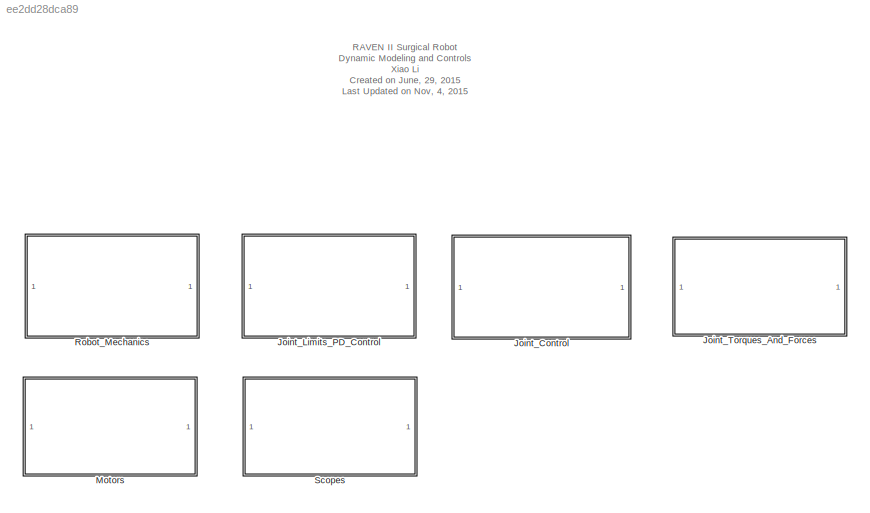
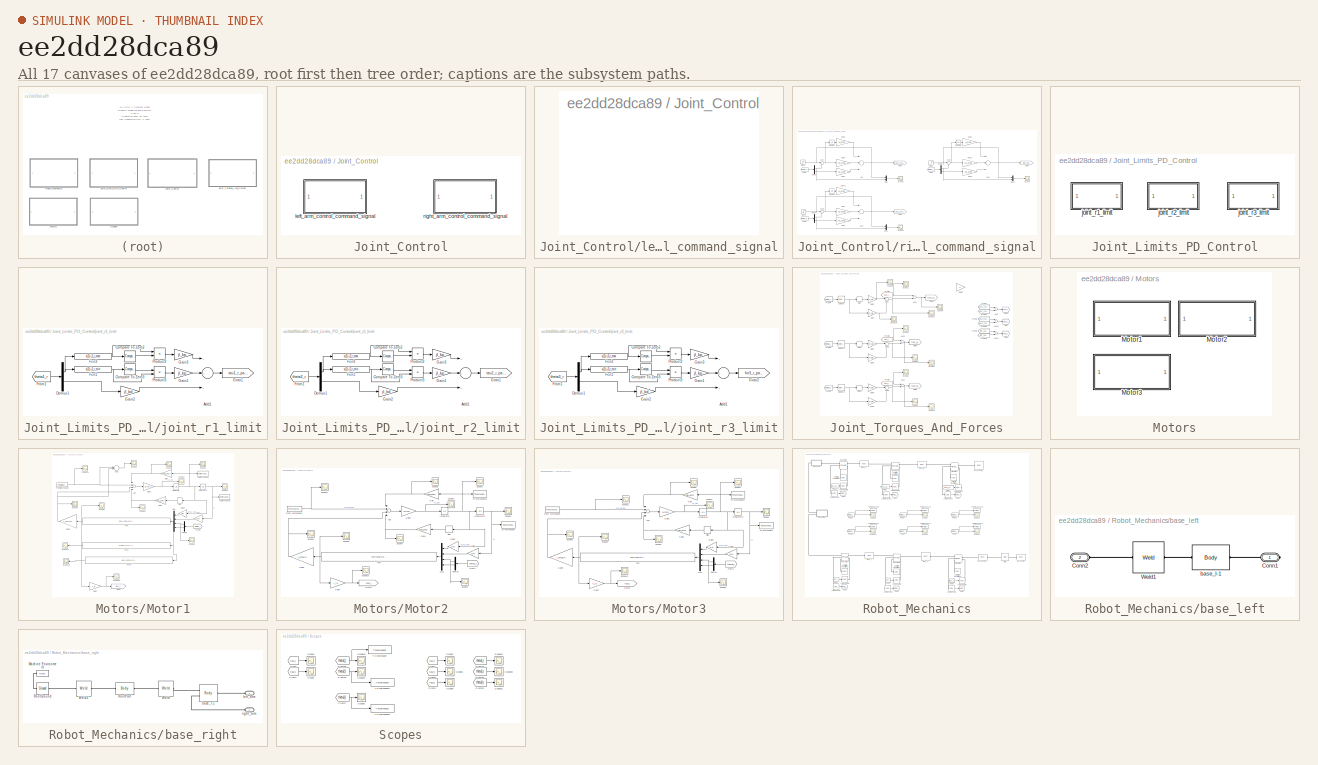
[diagram: thumbnail index - all 17 canvases of the model, root first then tree order]
MODEL slx_ee2dd28dca89
KIND model
CONFIG AbsTol = auto
CONFIG FixedStep = 1e-3
CONFIG MaxStep = auto
CONFIG MinStep = auto
CONFIG RelTol = 1e-3
CONFIG SampleTimeConstraint = Unconstrained
CONFIG Solver = ode5
CONFIG SolverMode = SingleTasking
CONFIG SolverName = ode5
CONFIG StartTime = 0.0
CONFIG StopTime = 19.414
BLOCK [SubSystem] Joint_Control
  Ports = []
  RequestExecContextInheritance = off
  Variant = off
BLOCK [SubSystem] Joint_Control/left_arm_control_command_signal
  Ports = []
  RequestExecContextInheritance = off
  Variant = off
BLOCK [SubSystem] Joint_Control/right_arm_control_command_signal
  Ports = []
  RequestExecContextInheritance = off
  Variant = off
BLOCK [Sum] Joint_Control/right_arm_control_command_signal/Add
  InputSameDT = off
  Inputs = ++-
  OutDataTypeStr = Inherit: Inherit via internal rule
  Ports = [3, 1]
  SaturateOnIntegerOverflow = off
BLOCK [Sum] Joint_Control/right_arm_control_command_signal/Add1
  InputSameDT = off
  Inputs = ++-
  OutDataTypeStr = Inherit: Inherit via internal rule
  Ports = [3, 1]
  SaturateOnIntegerOverflow = off
BLOCK [Sum] Joint_Control/right_arm_control_command_signal/Add2
  InputSameDT = off
  Inputs = ++-
  OutDataTypeStr = Inherit: Inherit via internal rule
  Ports = [3, 1]
  SaturateOnIntegerOverflow = off
BLOCK [Demux] Joint_Control/right_arm_control_command_signal/Demux
  DisplayOption = bar
  Outputs = 2
  Ports = [1, 2]
BLOCK [Demux] Joint_Control/right_arm_control_command_signal/Demux1
  DisplayOption = bar
  Outputs = 2
  Ports = [1, 2]
BLOCK [Demux] Joint_Control/right_arm_control_command_signal/Demux2
  DisplayOption = bar
  Outputs = 2
  Ports = [1, 2]
BLOCK [From] Joint_Control/right_arm_control_command_signal/From1
  GotoTag = theta1_r
  TagVisibility = global
BLOCK [From] Joint_Control/right_arm_control_command_signal/From2
  GotoTag = theta2_r
  TagVisibility = global
BLOCK [From] Joint_Control/right_arm_control_command_signal/From3
  GotoTag = theta3_r
  TagVisibility = global
BLOCK [Gain] Joint_Control/right_arm_control_command_signal/Gain1
  Gain = kd_arm1
  OutDataTypeStr = Inherit: Inherit via internal rule
  ParamDataTypeStr = Inherit: Inherit via internal rule
  SaturateOnIntegerOverflow = off
BLOCK [Gain] Joint_Control/right_arm_control_command_signal/Gain10
  Gain = ki_arm2
  OutDataTypeStr = Inherit: Inherit via internal rule
  ParamDataTypeStr = Inherit: Inherit via internal rule
  SaturateOnIntegerOverflow = off
BLOCK [Gain] Joint_Control/right_arm_control_command_signal/Gain11
  Gain = kp_arm3
  OutDataTypeStr = Inherit: Inherit via internal rule
  ParamDataTypeStr = Inherit: Inherit via internal rule
  SaturateOnIntegerOverflow = off
BLOCK [Gain] Joint_Control/right_arm_control_command_signal/Gain2
  Gain = kd_arm2
  OutDataTypeStr = Inherit: Inherit via internal rule
  ParamDataTypeStr = Inherit: Inherit via internal rule
  SaturateOnIntegerOverflow = off
BLOCK [Gain] Joint_Control/right_arm_control_command_signal/Gain3
  Gain = kp_arm1
  OutDataTypeStr = Inherit: Inherit via internal rule
  ParamDataTypeStr = Inherit: Inherit via internal rule
  SaturateOnIntegerOverflow = off
BLOCK [Gain] Joint_Control/right_arm_control_command_signal/Gain4
  Gain = kp_arm2
  OutDataTypeStr = Inherit: Inherit via internal rule
  ParamDataTypeStr = Inherit: Inherit via internal rule
  SaturateOnIntegerOverflow = off
BLOCK [Gain] Joint_Control/right_arm_control_command_signal/Gain5
  Gain = ki_arm3
  OutDataTypeStr = Inherit: Inherit via internal rule
  ParamDataTypeStr = Inherit: Inherit via internal rule
  SaturateOnIntegerOverflow = off
BLOCK [Gain] Joint_Control/right_arm_control_command_signal/Gain6
  Gain = kd_arm3
  OutDataTypeStr = Inherit: Inherit via internal rule
  ParamDataTypeStr = Inherit: Inherit via internal rule
  SaturateOnIntegerOverflow = off
BLOCK [Gain] Joint_Control/right_arm_control_command_signal/Gain9
  Gain = ki_arm1
  OutDataTypeStr = Inherit: Inherit via internal rule
  ParamDataTypeStr = Inherit: Inherit via internal rule
  SaturateOnIntegerOverflow = off
BLOCK [Goto] Joint_Control/right_arm_control_command_signal/Goto1
  GotoTag = tau2_r_part2
  TagVisibility = global
BLOCK [Goto] Joint_Control/right_arm_control_command_signal/Goto2
  GotoTag = tau1_r_part2
  TagVisibility = global
BLOCK [Goto] Joint_Control/right_arm_control_command_signal/Goto3
  GotoTag = for3_r_part2
  TagVisibility = global
BLOCK [Integrator] Joint_Control/right_arm_control_command_signal/Integrator
  Ports = [1, 1]
BLOCK [Integrator] Joint_Control/right_arm_control_command_signal/Integrator1
  Ports = [1, 1]
BLOCK [Integrator] Joint_Control/right_arm_control_command_signal/Integrator2
  Ports = [1, 1]
BLOCK [Mux] Joint_Control/right_arm_control_command_signal/Mux
  DisplayOption = bar
  Inputs = 2
  Ports = [2, 1]
BLOCK [Mux] Joint_Control/right_arm_control_command_signal/Mux1
  DisplayOption = bar
  Inputs = 2
  Ports = [2, 1]
BLOCK [Mux] Joint_Control/right_arm_control_command_signal/Mux2
  DisplayOption = bar
  Inputs = 2
  Ports = [2, 1]
BLOCK [Scope] Joint_Control/right_arm_control_command_signal/Scope1
  Ports = [1]
  ScopeSpecificationString = Simulink.scopes.TimeScopeBlockCfg('CurrentConfiguration', extmgr.ConfigurationSet(extmgr.Configuration('Core','General UI',true,'FigureColor',[0.501960784313725 0.501960784313725 0.501960784313725]),extmgr.Configuration('Core','Source UI',true),extmgr.Configuration('Sources','WiredSimulink',true,'DataLoggingVariableName','ScopeData26','DataLoggingSaveFormat','Array','DataLoggingDecimation','1','Da...<+2580ch>
BLOCK [Scope] Joint_Control/right_arm_control_command_signal/Scope2
  Ports = [1]
  ScopeSpecificationString = Simulink.scopes.TimeScopeBlockCfg('CurrentConfiguration', extmgr.ConfigurationSet(extmgr.Configuration('Core','General UI',true,'FigureColor',[0.501960784313725 0.501960784313725 0.501960784313725]),extmgr.Configuration('Core','Source UI',true),extmgr.Configuration('Sources','WiredSimulink',true,'DataLoggingVariableName','ScopeData27','DataLoggingSaveFormat','Array','DataLoggingDecimation','1','Da...<+2580ch>
BLOCK [Scope] Joint_Control/right_arm_control_command_signal/Scope3
  Ports = [1]
  ScopeSpecificationString = Simulink.scopes.TimeScopeBlockCfg('CurrentConfiguration', extmgr.ConfigurationSet(extmgr.Configuration('Core','General UI',true,'FigureColor',[0.501960784313725 0.501960784313725 0.501960784313725]),extmgr.Configuration('Core','Source UI',true),extmgr.Configuration('Sources','WiredSimulink',true,'DataLoggingVariableName','ScopeData30','DataLoggingSaveFormat','Array','DataLoggingDecimation','1','Da...<+2603ch>
BLOCK [Step] Joint_Control/right_arm_control_command_signal/Step1
  After = theta1_d_r
  Before = theta1_0_r
  SampleTime = 0
  Time = 0
BLOCK [Step] Joint_Control/right_arm_control_command_signal/Step2
  After = theta2_d_r
  Before = theta2_0_r
  SampleTime = 0
  Time = 0
BLOCK [Step] Joint_Control/right_arm_control_command_signal/Step5
  After = theta3_d_r
  Before = theta3_0_r
  SampleTime = 0
  Time = 0
BLOCK [Sum] Joint_Control/right_arm_control_command_signal/Sum
  IconShape = round
  InputSameDT = off
  Inputs = |+-
  OutDataTypeStr = Inherit: Inherit via internal rule
  Ports = [2, 1]
  SaturateOnIntegerOverflow = off
BLOCK [Sum] Joint_Control/right_arm_control_command_signal/Sum1
  IconShape = round
  InputSameDT = off
  Inputs = |+-
  OutDataTypeStr = Inherit: Inherit via internal rule
  Ports = [2, 1]
  SaturateOnIntegerOverflow = off
BLOCK [Sum] Joint_Control/right_arm_control_command_signal/Sum2
  IconShape = round
  InputSameDT = off
  Inputs = |+-
  OutDataTypeStr = Inherit: Inherit via internal rule
  Ports = [2, 1]
  SaturateOnIntegerOverflow = off
BLOCK [SubSystem] Joint_Limits_PD_Control
  Ports = []
  RequestExecContextInheritance = off
  Variant = off
BLOCK [SubSystem] Joint_Limits_PD_Control/joint_r1_limit
  Ports = []
  RequestExecContextInheritance = off
  Variant = off
BLOCK [Sum] Joint_Limits_PD_Control/joint_r1_limit/Add1
  InputSameDT = off
  Inputs = ---
  OutDataTypeStr = Inherit: Inherit via internal rule
  Ports = [3, 1]
  SaturateOnIntegerOverflow = off
BLOCK [Reference] Joint_Limits_PD_Control/joint_r1_limit/Compare To Zero2  REF=simulink/Logic and Bit
Operations/Compare
To Zero
  Ports = [1, 1]
  SourceBlock = simulink/Logic and Bit\nOperations/Compare\nTo Zero
  SourceType = Compare To Zero
BLOCK [Reference] Joint_Limits_PD_Control/joint_r1_limit/Compare To Zero3  REF=simulink/Logic and Bit
Operations/Compare
To Zero
  Ports = [1, 1]
  SourceBlock = simulink/Logic and Bit\nOperations/Compare\nTo Zero
  SourceType = Compare To Zero
BLOCK [Demux] Joint_Limits_PD_Control/joint_r1_limit/Demux1
  DisplayOption = bar
  Outputs = 2
  Ports = [1, 2]
BLOCK [Fcn] Joint_Limits_PD_Control/joint_r1_limit/Fcn1
  Expr = u(1)-j1_r_min
BLOCK [Fcn] Joint_Limits_PD_Control/joint_r1_limit/Fcn3
  Expr = u(1)-j1_r_max
BLOCK [From] Joint_Limits_PD_Control/joint_r1_limit/From1
  GotoTag = theta1_r
  TagVisibility = global
BLOCK [Gain] Joint_Limits_PD_Control/joint_r1_limit/Gain1
  Gain = jl_kp
  OutDataTypeStr = Inherit: Inherit via internal rule
  ParamDataTypeStr = Inherit: Inherit via internal rule
  SaturateOnIntegerOverflow = off
BLOCK [Gain] Joint_Limits_PD_Control/joint_r1_limit/Gain2
  Gain = jl_kd
  OutDataTypeStr = Inherit: Inherit via internal rule
  ParamDataTypeStr = Inherit: Inherit via internal rule
  SaturateOnIntegerOverflow = off
BLOCK [Gain] Joint_Limits_PD_Control/joint_r1_limit/Gain3
  Gain = jl_kp
  OutDataTypeStr = Inherit: Inherit via internal rule
  ParamDataTypeStr = Inherit: Inherit via internal rule
  SaturateOnIntegerOverflow = off
BLOCK [Goto] Joint_Limits_PD_Control/joint_r1_limit/Goto1
  GotoTag = tau1_r_part1
  TagVisibility = global
BLOCK [Product] Joint_Limits_PD_Control/joint_r1_limit/Product2
  InputSameDT = off
  OutDataTypeStr = Inherit: Inherit via internal rule
  Ports = [2, 1]
  RndMeth = Floor
  SaturateOnIntegerOverflow = off
BLOCK [Product] Joint_Limits_PD_Control/joint_r1_limit/Product3
  InputSameDT = off
  OutDataTypeStr = Inherit: Inherit via internal rule
  Ports = [2, 1]
  RndMeth = Floor
  SaturateOnIntegerOverflow = off
BLOCK [SubSystem] Joint_Limits_PD_Control/joint_r2_limit
  Ports = []
  RequestExecContextInheritance = off
  Variant = off
BLOCK [Sum] Joint_Limits_PD_Control/joint_r2_limit/Add1
  InputSameDT = off
  Inputs = ---
  OutDataTypeStr = Inherit: Inherit via internal rule
  Ports = [3, 1]
  SaturateOnIntegerOverflow = off
BLOCK [Reference] Joint_Limits_PD_Control/joint_r2_limit/Compare To Zero2  REF=simulink/Logic and Bit
Operations/Compare
To Zero
  Ports = [1, 1]
  SourceBlock = simulink/Logic and Bit\nOperations/Compare\nTo Zero
  SourceType = Compare To Zero
BLOCK [Reference] Joint_Limits_PD_Control/joint_r2_limit/Compare To Zero3  REF=simulink/Logic and Bit
Operations/Compare
To Zero
  Ports = [1, 1]
  SourceBlock = simulink/Logic and Bit\nOperations/Compare\nTo Zero
  SourceType = Compare To Zero
BLOCK [Demux] Joint_Limits_PD_Control/joint_r2_limit/Demux1
  DisplayOption = bar
  Outputs = 2
  Ports = [1, 2]
BLOCK [Fcn] Joint_Limits_PD_Control/joint_r2_limit/Fcn1
  Expr = u(1)-j2_r_min
BLOCK [Fcn] Joint_Limits_PD_Control/joint_r2_limit/Fcn3
  Expr = u(1)-j2_r_max
BLOCK [From] Joint_Limits_PD_Control/joint_r2_limit/From1
  GotoTag = theta2_r
  TagVisibility = global
BLOCK [Gain] Joint_Limits_PD_Control/joint_r2_limit/Gain1
  Gain = jl_kp
  OutDataTypeStr = Inherit: Inherit via internal rule
  ParamDataTypeStr = Inherit: Inherit via internal rule
  SaturateOnIntegerOverflow = off
BLOCK [Gain] Joint_Limits_PD_Control/joint_r2_limit/Gain2
  Gain = jl_kd
  OutDataTypeStr = Inherit: Inherit via internal rule
  ParamDataTypeStr = Inherit: Inherit via internal rule
  SaturateOnIntegerOverflow = off
BLOCK [Gain] Joint_Limits_PD_Control/joint_r2_limit/Gain3
  Gain = jl_kp
  OutDataTypeStr = Inherit: Inherit via internal rule
  ParamDataTypeStr = Inherit: Inherit via internal rule
  SaturateOnIntegerOverflow = off
BLOCK [Goto] Joint_Limits_PD_Control/joint_r2_limit/Goto1
  GotoTag = tau2_r_part1
  TagVisibility = global
BLOCK [Product] Joint_Limits_PD_Control/joint_r2_limit/Product2
  InputSameDT = off
  OutDataTypeStr = Inherit: Inherit via internal rule
  Ports = [2, 1]
  RndMeth = Floor
  SaturateOnIntegerOverflow = off
BLOCK [Product] Joint_Limits_PD_Control/joint_r2_limit/Product3
  InputSameDT = off
  OutDataTypeStr = Inherit: Inherit via internal rule
  Ports = [2, 1]
  RndMeth = Floor
  SaturateOnIntegerOverflow = off
BLOCK [SubSystem] Joint_Limits_PD_Control/joint_r3_limit
  Ports = []
  RequestExecContextInheritance = off
  Variant = off
BLOCK [Sum] Joint_Limits_PD_Control/joint_r3_limit/Add1
  InputSameDT = off
  Inputs = ---
  OutDataTypeStr = Inherit: Inherit via internal rule
  Ports = [3, 1]
  SaturateOnIntegerOverflow = off
BLOCK [Reference] Joint_Limits_PD_Control/joint_r3_limit/Compare To Zero2  REF=simulink/Logic and Bit
Operations/Compare
To Zero
  Ports = [1, 1]
  SourceBlock = simulink/Logic and Bit\nOperations/Compare\nTo Zero
  SourceType = Compare To Zero
BLOCK [Reference] Joint_Limits_PD_Control/joint_r3_limit/Compare To Zero3  REF=simulink/Logic and Bit
Operations/Compare
To Zero
  Ports = [1, 1]
  SourceBlock = simulink/Logic and Bit\nOperations/Compare\nTo Zero
  SourceType = Compare To Zero
BLOCK [Demux] Joint_Limits_PD_Control/joint_r3_limit/Demux1
  DisplayOption = bar
  Outputs = 2
  Ports = [1, 2]
BLOCK [Fcn] Joint_Limits_PD_Control/joint_r3_limit/Fcn1
  Expr = u(1)-j3_r_min
BLOCK [Fcn] Joint_Limits_PD_Control/joint_r3_limit/Fcn3
  Expr = u(1)-j3_r_max
BLOCK [From] Joint_Limits_PD_Control/joint_r3_limit/From1
  GotoTag = theta3_r
  TagVisibility = global
BLOCK [Gain] Joint_Limits_PD_Control/joint_r3_limit/Gain1
  Gain = jl_kp
  OutDataTypeStr = Inherit: Inherit via internal rule
  ParamDataTypeStr = Inherit: Inherit via internal rule
  SaturateOnIntegerOverflow = off
BLOCK [Gain] Joint_Limits_PD_Control/joint_r3_limit/Gain2
  Gain = jl_kd
  OutDataTypeStr = Inherit: Inherit via internal rule
  ParamDataTypeStr = Inherit: Inherit via internal rule
  SaturateOnIntegerOverflow = off
BLOCK [Gain] Joint_Limits_PD_Control/joint_r3_limit/Gain3
  Gain = jl_kp
  OutDataTypeStr = Inherit: Inherit via internal rule
  ParamDataTypeStr = Inherit: Inherit via internal rule
  SaturateOnIntegerOverflow = off
BLOCK [Goto] Joint_Limits_PD_Control/joint_r3_limit/Goto2
  GotoTag = for3_r_part1
  TagVisibility = global
BLOCK [Product] Joint_Limits_PD_Control/joint_r3_limit/Product2
  InputSameDT = off
  OutDataTypeStr = Inherit: Inherit via internal rule
  Ports = [2, 1]
  RndMeth = Floor
  SaturateOnIntegerOverflow = off
BLOCK [Product] Joint_Limits_PD_Control/joint_r3_limit/Product3
  InputSameDT = off
  OutDataTypeStr = Inherit: Inherit via internal rule
  Ports = [2, 1]
  RndMeth = Floor
  SaturateOnIntegerOverflow = off
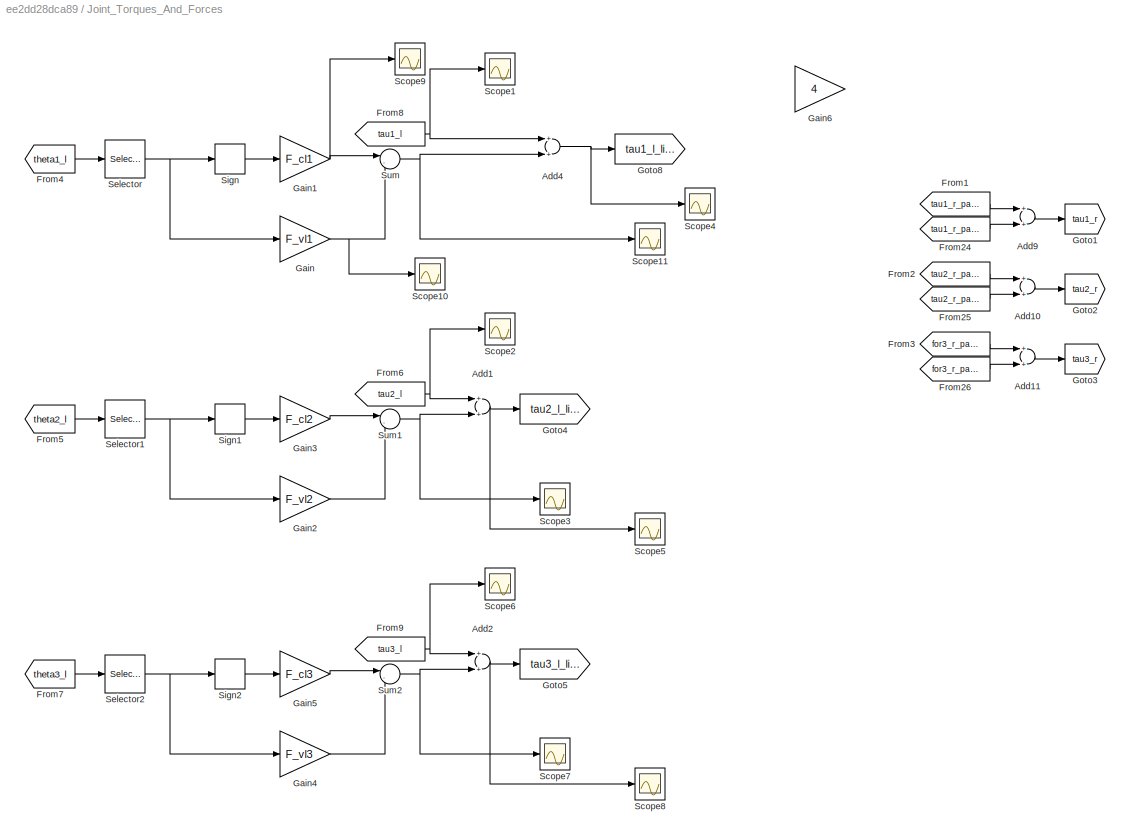
BLOCK [SubSystem] Joint_Torques_And_Forces
  Ports = []
  RequestExecContextInheritance = off
  Variant = off
BLOCK [Sum] Joint_Torques_And_Forces/Add1
  InputSameDT = off
  OutDataTypeStr = Inherit: Inherit via internal rule
  Ports = [2, 1]
  SaturateOnIntegerOverflow = off
BLOCK [Sum] Joint_Torques_And_Forces/Add10
  InputSameDT = off
  OutDataTypeStr = Inherit: Inherit via internal rule
  Ports = [2, 1]
  SaturateOnIntegerOverflow = off
BLOCK [Sum] Joint_Torques_And_Forces/Add11
  InputSameDT = off
  OutDataTypeStr = Inherit: Inherit via internal rule
  Ports = [2, 1]
  SaturateOnIntegerOverflow = off
BLOCK [Sum] Joint_Torques_And_Forces/Add2
  InputSameDT = off
  OutDataTypeStr = Inherit: Inherit via internal rule
  Ports = [2, 1]
  SaturateOnIntegerOverflow = off
BLOCK [Sum] Joint_Torques_And_Forces/Add4
  InputSameDT = off
  OutDataTypeStr = Inherit: Inherit via internal rule
  Ports = [2, 1]
  SaturateOnIntegerOverflow = off
BLOCK [Sum] Joint_Torques_And_Forces/Add9
  InputSameDT = off
  OutDataTypeStr = Inherit: Inherit via internal rule
  Ports = [2, 1]
  SaturateOnIntegerOverflow = off
BLOCK [From] Joint_Torques_And_Forces/From1
  GotoTag = tau1_r_part1
  TagVisibility = global
BLOCK [From] Joint_Torques_And_Forces/From2
  GotoTag = tau2_r_part1
  TagVisibility = global
BLOCK [From] Joint_Torques_And_Forces/From24
  GotoTag = tau1_r_part2
  TagVisibility = global
BLOCK [From] Joint_Torques_And_Forces/From25
  GotoTag = tau2_r_part2
  TagVisibility = global
BLOCK [From] Joint_Torques_And_Forces/From26
  GotoTag = for3_r_part2
  TagVisibility = global
BLOCK [From] Joint_Torques_And_Forces/From3
  GotoTag = for3_r_part1
  TagVisibility = global
BLOCK [From] Joint_Torques_And_Forces/From4
  GotoTag = theta1_l
  TagVisibility = global
BLOCK [From] Joint_Torques_And_Forces/From5
  GotoTag = theta2_l
  TagVisibility = global
BLOCK [From] Joint_Torques_And_Forces/From6
  GotoTag = tau2_l
  TagVisibility = global
BLOCK [From] Joint_Torques_And_Forces/From7
  GotoTag = theta3_l
  TagVisibility = global
BLOCK [From] Joint_Torques_And_Forces/From8
  GotoTag = tau1_l
  TagVisibility = global
BLOCK [From] Joint_Torques_And_Forces/From9
  GotoTag = tau3_l
  TagVisibility = global
BLOCK [Gain] Joint_Torques_And_Forces/Gain
  Gain = F_vl1
  OutDataTypeStr = Inherit: Inherit via internal rule
  ParamDataTypeStr = Inherit: Inherit via internal rule
  SaturateOnIntegerOverflow = off
BLOCK [Gain] Joint_Torques_And_Forces/Gain1
  Gain = F_cl1
  OutDataTypeStr = Inherit: Inherit via internal rule
  ParamDataTypeStr = Inherit: Inherit via internal rule
  SaturateOnIntegerOverflow = off
BLOCK [Gain] Joint_Torques_And_Forces/Gain2
  Gain = F_vl2
  OutDataTypeStr = Inherit: Inherit via internal rule
  ParamDataTypeStr = Inherit: Inherit via internal rule
  SaturateOnIntegerOverflow = off
BLOCK [Gain] Joint_Torques_And_Forces/Gain3
  Gain = F_cl2
  OutDataTypeStr = Inherit: Inherit via internal rule
  ParamDataTypeStr = Inherit: Inherit via internal rule
  SaturateOnIntegerOverflow = off
BLOCK [Gain] Joint_Torques_And_Forces/Gain4
  Gain = F_vl3
  OutDataTypeStr = Inherit: Inherit via internal rule
  ParamDataTypeStr = Inherit: Inherit via internal rule
  SaturateOnIntegerOverflow = off
BLOCK [Gain] Joint_Torques_And_Forces/Gain5
  Gain = F_cl3
  OutDataTypeStr = Inherit: Inherit via internal rule
  ParamDataTypeStr = Inherit: Inherit via internal rule
  SaturateOnIntegerOverflow = off
BLOCK [Gain] Joint_Torques_And_Forces/Gain6
  Gain = 4
  OutDataTypeStr = Inherit: Inherit via internal rule
  ParamDataTypeStr = Inherit: Inherit via internal rule
  SaturateOnIntegerOverflow = off
BLOCK [Goto] Joint_Torques_And_Forces/Goto1
  GotoTag = tau1_r
  TagVisibility = global
BLOCK [Goto] Joint_Torques_And_Forces/Goto2
  GotoTag = tau2_r
  TagVisibility = global
BLOCK [Goto] Joint_Torques_And_Forces/Goto3
  GotoTag = tau3_r
  TagVisibility = global
BLOCK [Goto] Joint_Torques_And_Forces/Goto4
  GotoTag = tau2_l_link
  TagVisibility = global
BLOCK [Goto] Joint_Torques_And_Forces/Goto5
  GotoTag = tau3_l_link
  TagVisibility = global
BLOCK [Goto] Joint_Torques_And_Forces/Goto8
  GotoTag = tau1_l_link
  TagVisibility = global
BLOCK [Scope] Joint_Torques_And_Forces/Scope1
  Ports = [1]
  ScopeSpecificationString = Simulink.scopes.TimeScopeBlockCfg('CurrentConfiguration', extmgr.ConfigurationSet(extmgr.Configuration('Core','General UI',true),extmgr.Configuration('Core','Source UI',true),extmgr.Configuration('Sources','WiredSimulink',true,'DataLoggingVariableName','ScopeData24','DataLoggingSaveFormat','Array','DataLoggingDecimation','1','DataLoggingDecimateData',true),extmgr.Configuration('Visuals','Time Doma...<+866ch>
BLOCK [Scope] Joint_Torques_And_Forces/Scope10
  Ports = [1]
  ScopeSpecificationString = Simulink.scopes.TimeScopeBlockCfg('CurrentConfiguration', extmgr.ConfigurationSet(extmgr.Configuration('Core','General UI',true),extmgr.Configuration('Core','Source UI',true),extmgr.Configuration('Sources','WiredSimulink',true,'DataLoggingVariableName','ScopeData38','DataLoggingSaveFormat','Array','DataLoggingDecimation','1','DataLoggingDecimateData',true),extmgr.Configuration('Visuals','Time Doma...<+866ch>
BLOCK [Scope] Joint_Torques_And_Forces/Scope11
  Ports = [1]
  ScopeSpecificationString = Simulink.scopes.TimeScopeBlockCfg('CurrentConfiguration', extmgr.ConfigurationSet(extmgr.Configuration('Core','General UI',true),extmgr.Configuration('Core','Source UI',true),extmgr.Configuration('Sources','WiredSimulink',true,'DataLoggingVariableName','ScopeData23','DataLoggingSaveFormat','Array','DataLoggingDecimation','1','DataLoggingDecimateData',true),extmgr.Configuration('Visuals','Time Doma...<+866ch>
BLOCK [Scope] Joint_Torques_And_Forces/Scope2
  Ports = [1]
  ScopeSpecificationString = Simulink.scopes.TimeScopeBlockCfg('CurrentConfiguration', extmgr.ConfigurationSet(extmgr.Configuration('Core','General UI',true),extmgr.Configuration('Core','Source UI',true),extmgr.Configuration('Sources','WiredSimulink',true,'DataLoggingVariableName','ScopeData25','DataLoggingSaveFormat','Array','DataLoggingDecimation','1','DataLoggingDecimateData',true),extmgr.Configuration('Visuals','Time Doma...<+866ch>
BLOCK [Scope] Joint_Torques_And_Forces/Scope3
  Ports = [1]
  ScopeSpecificationString = Simulink.scopes.TimeScopeBlockCfg('CurrentConfiguration', extmgr.ConfigurationSet(extmgr.Configuration('Core','General UI',true),extmgr.Configuration('Core','Source UI',true),extmgr.Configuration('Sources','WiredSimulink',true,'DataLoggingVariableName','ScopeData29','DataLoggingSaveFormat','Array','DataLoggingDecimation','1','DataLoggingDecimateData',true),extmgr.Configuration('Visuals','Time Doma...<+866ch>
BLOCK [Scope] Joint_Torques_And_Forces/Scope4
  Ports = [1]
  ScopeSpecificationString = Simulink.scopes.TimeScopeBlockCfg('CurrentConfiguration', extmgr.ConfigurationSet(extmgr.Configuration('Core','General UI',true),extmgr.Configuration('Core','Source UI',true),extmgr.Configuration('Sources','WiredSimulink',true,'DataLoggingVariableName','ScopeData2','DataLoggingSaveFormat','Array','DataLoggingDecimation','1','DataLoggingDecimateData',true),extmgr.Configuration('Visuals','Time Domai...<+865ch>
BLOCK [Scope] Joint_Torques_And_Forces/Scope5
  Ports = [1]
  ScopeSpecificationString = Simulink.scopes.TimeScopeBlockCfg('CurrentConfiguration', extmgr.ConfigurationSet(extmgr.Configuration('Core','General UI',true),extmgr.Configuration('Core','Source UI',true),extmgr.Configuration('Sources','WiredSimulink',true,'DataLoggingVariableName','ScopeData15','DataLoggingSaveFormat','Array','DataLoggingDecimation','1','DataLoggingDecimateData',true),extmgr.Configuration('Visuals','Time Doma...<+866ch>
BLOCK [Scope] Joint_Torques_And_Forces/Scope6
  Ports = [1]
  ScopeSpecificationString = Simulink.scopes.TimeScopeBlockCfg('CurrentConfiguration', extmgr.ConfigurationSet(extmgr.Configuration('Core','General UI',true),extmgr.Configuration('Core','Source UI',true),extmgr.Configuration('Sources','WiredSimulink',true,'DataLoggingVariableName','ScopeData34','DataLoggingSaveFormat','Array','DataLoggingDecimation','1','DataLoggingDecimateData',true),extmgr.Configuration('Visuals','Time Doma...<+866ch>
BLOCK [Scope] Joint_Torques_And_Forces/Scope7
  Ports = [1]
  ScopeSpecificationString = Simulink.scopes.TimeScopeBlockCfg('CurrentConfiguration', extmgr.ConfigurationSet(extmgr.Configuration('Core','General UI',true),extmgr.Configuration('Core','Source UI',true),extmgr.Configuration('Sources','WiredSimulink',true,'DataLoggingVariableName','ScopeData36','DataLoggingSaveFormat','Array','DataLoggingDecimation','1','DataLoggingDecimateData',true),extmgr.Configuration('Visuals','Time Doma...<+866ch>
BLOCK [Scope] Joint_Torques_And_Forces/Scope8
  Ports = [1]
  ScopeSpecificationString = Simulink.scopes.TimeScopeBlockCfg('CurrentConfiguration', extmgr.ConfigurationSet(extmgr.Configuration('Core','General UI',true),extmgr.Configuration('Core','Source UI',true),extmgr.Configuration('Sources','WiredSimulink',true,'DataLoggingVariableName','ScopeData37','DataLoggingSaveFormat','Array','DataLoggingDecimation','1','DataLoggingDecimateData',true),extmgr.Configuration('Visuals','Time Doma...<+866ch>
BLOCK [Scope] Joint_Torques_And_Forces/Scope9
  Ports = [1]
  ScopeSpecificationString = Simulink.scopes.TimeScopeBlockCfg('CurrentConfiguration', extmgr.ConfigurationSet(extmgr.Configuration('Core','General UI',true),extmgr.Configuration('Core','Source UI',true),extmgr.Configuration('Sources','WiredSimulink',true,'DataLoggingVariableName','ScopeData33','DataLoggingSaveFormat','Array','DataLoggingDecimation','1','DataLoggingDecimateData',true),extmgr.Configuration('Visuals','Time Doma...<+866ch>
BLOCK [Selector] Joint_Torques_And_Forces/Selector
  IndexOptions = Index vector (dialog)
  Indices = [2]
  InputPortWidth = 2
  OutputSizes = 1
  Ports = [1, 1]
BLOCK [Selector] Joint_Torques_And_Forces/Selector1
  IndexOptions = Index vector (dialog)
  Indices = [2]
  InputPortWidth = 2
  OutputSizes = 1
  Ports = [1, 1]
BLOCK [Selector] Joint_Torques_And_Forces/Selector2
  IndexOptions = Index vector (dialog)
  Indices = [2]
  InputPortWidth = 2
  OutputSizes = 1
  Ports = [1, 1]
BLOCK [Signum] Joint_Torques_And_Forces/Sign
BLOCK [Signum] Joint_Torques_And_Forces/Sign1
BLOCK [Signum] Joint_Torques_And_Forces/Sign2
BLOCK [Sum] Joint_Torques_And_Forces/Sum
  IconShape = round
  InputSameDT = off
  Inputs = |--
  OutDataTypeStr = Inherit: Inherit via internal rule
  Ports = [2, 1]
  SaturateOnIntegerOverflow = off
BLOCK [Sum] Joint_Torques_And_Forces/Sum1
  IconShape = round
  InputSameDT = off
  Inputs = |--
  OutDataTypeStr = Inherit: Inherit via internal rule
  Ports = [2, 1]
  SaturateOnIntegerOverflow = off
BLOCK [Sum] Joint_Torques_And_Forces/Sum2
  IconShape = round
  InputSameDT = off
  Inputs = |--
  OutDataTypeStr = Inherit: Inherit via internal rule
  Ports = [2, 1]
  SaturateOnIntegerOverflow = off
BLOCK [SubSystem] Motors
  Ports = []
  RequestExecContextInheritance = off
  Variant = off
BLOCK [SubSystem] Motors/Motor1
  Ports = []
  RequestExecContextInheritance = off
  Variant = off
BLOCK [Sum] Motors/Motor1/Add
  InputSameDT = off
  Inputs = -+--
  OutDataTypeStr = Inherit: Inherit via internal rule
  Ports = [4, 1]
  SaturateOnIntegerOverflow = off
BLOCK [Sum] Motors/Motor1/Add1
  InputSameDT = off
  OutDataTypeStr = Inherit: Inherit via internal rule
  Ports = [2, 1]
  SaturateOnIntegerOverflow = off
BLOCK [Demux] Motors/Motor1/Demux
  DisplayOption = bar
  Outputs = 2
  Ports = [1, 2]
BLOCK [Fcn] Motors/Motor1/Fcn
  Expr = ke1*(exp(u(2)*r_mc1-(u(3)+pi)*r_l1)-exp((u(3)+pi)*r_l1-u(2)*r_mc1))+2*be1*(u(1)*r_mc1-u(4)*r_l1)
BLOCK [Fcn] Motors/Motor1/Fcn1
  Expr = 2*be1*(u(1)*r_mc1-u(4)*r_l1)
BLOCK [Fcn] Motors/Motor1/Fcn2
  Expr = ke1*(exp(u(2)*r_mc1-(u(3)+pi)*r_l1)-exp((u(3)+pi)*r_l1-u(2)*r_mc1))
BLOCK [FromWorkspace] Motors/Motor1/From Workspace
  SampleTime = 0
  VariableName = input1
  ZeroCross = on
BLOCK [From] Motors/Motor1/From1
  GotoTag = theta1_l
  TagVisibility = global
BLOCK [Gain] Motors/Motor1/Gain
  Gain = tau_vm1
  OutDataTypeStr = Inherit: Inherit via internal rule
  ParamDataTypeStr = Inherit: Inherit via internal rule
  SaturateOnIntegerOverflow = off
BLOCK [Gain] Motors/Motor1/Gain1
  Gain = tau_cm1
  OutDataTypeStr = Inherit: Inherit via internal rule
  ParamDataTypeStr = Inherit: Inherit via internal rule
  SaturateOnIntegerOverflow = off
BLOCK [Gain] Motors/Motor1/Gain2
  Gain = 1/Im1
  OutDataTypeStr = Inherit: Inherit via internal rule
  ParamDataTypeStr = Inherit: Inherit via internal rule
  SaturateOnIntegerOverflow = off
BLOCK [Gain] Motors/Motor1/Gain3
  Gain = r_mc1/N
  OutDataTypeStr = Inherit: Inherit via internal rule
  ParamDataTypeStr = Inherit: Inherit via internal rule
  SaturateOnIntegerOverflow = off
BLOCK [Gain] Motors/Motor1/Gain4
  Gain = 1/N
  OutDataTypeStr = Inherit: Inherit via internal rule
  ParamDataTypeStr = Inherit: Inherit via internal rule
  SaturateOnIntegerOverflow = off
BLOCK [Gain] Motors/Motor1/Gain5
  Gain = 1/N
  OutDataTypeStr = Inherit: Inherit via internal rule
  ParamDataTypeStr = Inherit: Inherit via internal rule
  SaturateOnIntegerOverflow = off
BLOCK [Gain] Motors/Motor1/Gain7
  Gain = r_l1
  OutDataTypeStr = Inherit: Inherit via internal rule
  ParamDataTypeStr = Inherit: Inherit via internal rule
  SaturateOnIntegerOverflow = off
BLOCK [Goto] Motors/Motor1/Goto2
  GotoTag = tau1_l
  TagVisibility = global
BLOCK [Integrator] Motors/Motor1/Integrator
  InitialCondition = m1_vel_ini
  Ports = [1, 1]
BLOCK [Integrator] Motors/Motor1/Integrator2
  InitialCondition = m1_pos_ini
  Ports = [1, 1]
BLOCK [Mux] Motors/Motor1/Mux
  DisplayOption = bar
  Ports = [4, 1]
BLOCK [Scope] Motors/Motor1/Scope1
  Ports = [1]
  ScopeSpecificationString = Simulink.scopes.TimeScopeBlockCfg('CurrentConfiguration', extmgr.ConfigurationSet(extmgr.Configuration('Core','General UI',true),extmgr.Configuration('Core','Source UI',true),extmgr.Configuration('Sources','WiredSimulink',true,'DataLoggingVariableName','ScopeData16','DataLoggingSaveFormat','Array','DataLoggingDecimation','1','DataLoggingDecimateData',true),extmgr.Configuration('Visuals','Time Doma...<+1592ch>  <repeated x3 — deduplicated; at blocks: Scope1>
BLOCK [Scope] Motors/Motor1/Scope10
  Ports = [1]
  ScopeSpecificationString = Simulink.scopes.TimeScopeBlockCfg('CurrentConfiguration', extmgr.ConfigurationSet(extmgr.Configuration('Core','General UI',true),extmgr.Configuration('Core','Source UI',true),extmgr.Configuration('Sources','WiredSimulink',true,'DataLoggingVariableName','ScopeData19','DataLoggingSaveFormat','Array','DataLoggingDecimation','1','DataLoggingDecimateData',true),extmgr.Configuration('Visuals','Time Doma...<+911ch>  <repeated x3 — deduplicated; at blocks: Scope10>
BLOCK [Scope] Motors/Motor1/Scope11
  Ports = [1]
  ScopeSpecificationString = Simulink.scopes.TimeScopeBlockCfg('CurrentConfiguration', extmgr.ConfigurationSet(extmgr.Configuration('Core','General UI',true),extmgr.Configuration('Core','Source UI',true),extmgr.Configuration('Sources','WiredSimulink',true,'DataLoggingVariableName','ScopeData22','DataLoggingSaveFormat','Array','DataLoggingDecimation','1','DataLoggingDecimateData',true),extmgr.Configuration('Visuals','Time Doma...<+866ch>
BLOCK [Scope] Motors/Motor1/Scope12
  Ports = [1]
  ScopeSpecificationString = Simulink.scopes.TimeScopeBlockCfg('CurrentConfiguration', extmgr.ConfigurationSet(extmgr.Configuration('Core','General UI',true),extmgr.Configuration('Core','Source UI',true),extmgr.Configuration('Sources','WiredSimulink',true,'DataLoggingVariableName','ScopeData39','DataLoggingSaveFormat','Array','DataLoggingDecimation','1','DataLoggingDecimateData',true),extmgr.Configuration('Visuals','Time Doma...<+865ch>
BLOCK [Scope] Motors/Motor1/Scope13
  Ports = [1]
  ScopeSpecificationString = Simulink.scopes.TimeScopeBlockCfg('CurrentConfiguration', extmgr.ConfigurationSet(extmgr.Configuration('Core','General UI',true),extmgr.Configuration('Core','Source UI',true),extmgr.Configuration('Sources','WiredSimulink',true,'DataLoggingVariableName','ScopeData43','DataLoggingSaveFormat','Array','DataLoggingDecimation','1','DataLoggingDecimateData',true),extmgr.Configuration('Visuals','Time Doma...<+865ch>
BLOCK [Scope] Motors/Motor1/Scope2
  Ports = [1]
  ScopeSpecificationString = Simulink.scopes.TimeScopeBlockCfg('CurrentConfiguration', extmgr.ConfigurationSet(extmgr.Configuration('Core','General UI',true),extmgr.Configuration('Core','Source UI',true),extmgr.Configuration('Sources','WiredSimulink',true,'DataLoggingVariableName','ScopeData17','DataLoggingSaveFormat','Array','DataLoggingDecimation','1','DataLoggingDecimateData',true),extmgr.Configuration('Visuals','Time Doma...<+1593ch>  <repeated x3 — deduplicated; at blocks: Scope2>
BLOCK [Scope] Motors/Motor1/Scope3
  Ports = [1]
  ScopeSpecificationString = Simulink.scopes.TimeScopeBlockCfg('CurrentConfiguration', extmgr.ConfigurationSet(extmgr.Configuration('Core','General UI',true),extmgr.Configuration('Core','Source UI',true),extmgr.Configuration('Sources','WiredSimulink',true,'DataLoggingVariableName','ScopeData18','DataLoggingSaveFormat','Array','DataLoggingDecimation','1','DataLoggingDecimateData',true),extmgr.Configuration('Visuals','Time Doma...<+865ch>
BLOCK [Scope] Motors/Motor1/Scope4
  Ports = [1]
  ScopeSpecificationString = Simulink.scopes.TimeScopeBlockCfg('CurrentConfiguration', extmgr.ConfigurationSet(extmgr.Configuration('Core','General UI',true),extmgr.Configuration('Core','Source UI',true),extmgr.Configuration('Sources','WiredSimulink',true,'DataLoggingVariableName','ScopeData3','DataLoggingSaveFormat','Array','DataLoggingDecimation','1','DataLoggingDecimateData',true),extmgr.Configuration('Visuals','Time Domai...<+865ch>  <repeated x3 — deduplicated; at blocks: Scope4>
BLOCK [Scope] Motors/Motor1/Scope5
  Ports = [1]
  ScopeSpecificationString = Simulink.scopes.TimeScopeBlockCfg('CurrentConfiguration', extmgr.ConfigurationSet(extmgr.Configuration('Core','General UI',true),extmgr.Configuration('Core','Source UI',true),extmgr.Configuration('Sources','WiredSimulink',true,'DataLoggingVariableName','ScopeData4','DataLoggingSaveFormat','Array','DataLoggingDecimation','1','DataLoggingDecimateData',true),extmgr.Configuration('Visuals','Time Domai...<+865ch>  <repeated x3 — deduplicated; at blocks: Scope5>
BLOCK [Scope] Motors/Motor1/Scope6
  Ports = [1]
  ScopeSpecificationString = Simulink.scopes.TimeScopeBlockCfg('CurrentConfiguration', extmgr.ConfigurationSet(extmgr.Configuration('Core','General UI',true),extmgr.Configuration('Core','Source UI',true),extmgr.Configuration('Sources','WiredSimulink',true,'DataLoggingVariableName','ScopeData5','DataLoggingSaveFormat','Array','DataLoggingDecimation','1','DataLoggingDecimateData',true),extmgr.Configuration('Visuals','Time Domai...<+865ch>  <repeated x3 — deduplicated; at blocks: Scope6>
BLOCK [Scope] Motors/Motor1/Scope7
  Ports = [1]
  ScopeSpecificationString = Simulink.scopes.TimeScopeBlockCfg('CurrentConfiguration', extmgr.ConfigurationSet(extmgr.Configuration('Core','General UI',true),extmgr.Configuration('Core','Source UI',true),extmgr.Configuration('Sources','WiredSimulink',true,'DataLoggingVariableName','ScopeData6','DataLoggingSaveFormat','Array','DataLoggingDecimation','1','DataLoggingDecimateData',true),extmgr.Configuration('Visuals','Time Domai...<+865ch>  <repeated x3 — deduplicated; at blocks: Scope7>
BLOCK [Scope] Motors/Motor1/Scope8
  Ports = [1]
  ScopeSpecificationString = Simulink.scopes.TimeScopeBlockCfg('CurrentConfiguration', extmgr.ConfigurationSet(extmgr.Configuration('Core','General UI',true),extmgr.Configuration('Core','Source UI',true),extmgr.Configuration('Sources','WiredSimulink',true,'DataLoggingVariableName','ScopeData7','DataLoggingSaveFormat','Array','DataLoggingDecimation','1','DataLoggingDecimateData',true),extmgr.Configuration('Visuals','Time Domai...<+865ch>
BLOCK [Scope] Motors/Motor1/Scope9
  Ports = [1]
  ScopeSpecificationString = Simulink.scopes.TimeScopeBlockCfg('CurrentConfiguration', extmgr.ConfigurationSet(extmgr.Configuration('Core','General UI',true),extmgr.Configuration('Core','Source UI',true),extmgr.Configuration('Sources','WiredSimulink',true,'DataLoggingVariableName','ScopeData11','DataLoggingSaveFormat','Array','DataLoggingDecimation','1','DataLoggingDecimateData',true),extmgr.Configuration('Visuals','Time Doma...<+867ch>  <repeated x3 — deduplicated; at blocks: Scope9>
BLOCK [Signum] Motors/Motor1/Sign
  ZeroCross = off
BLOCK [ToWorkspace] Motors/Motor1/To Workspace
  FixptAsFi = on
  MaxDataPoints = inf
  Ports = [1]
  SampleTime = -1
  Save2DSignal = 3-D array (concatenate along third dimension)
  SaveFormat = Timeseries
  VariableName = sim_mpos1
BLOCK [ToWorkspace] Motors/Motor1/To Workspace1
  FixptAsFi = on
  MaxDataPoints = inf
  Ports = [1]
  SampleTime = -1
  Save2DSignal = 3-D array (concatenate along third dimension)
  SaveFormat = Timeseries
  VariableName = sim_mvel1
BLOCK [SubSystem] Motors/Motor2
  Ports = []
  RequestExecContextInheritance = off
  Variant = off
BLOCK [Sum] Motors/Motor2/Add
  InputSameDT = off
  Inputs = -+--
  OutDataTypeStr = Inherit: Inherit via internal rule
  Ports = [4, 1]
  SaturateOnIntegerOverflow = off
BLOCK [Demux] Motors/Motor2/Demux
  DisplayOption = bar
  Outputs = 2
  Ports = [1, 2]
BLOCK [Fcn] Motors/Motor2/Fcn
  Expr = ke2*(exp(u(2)*r_mc2-(u(3)+pi)*r_l2)-exp((u(3)+pi)*r_l2-u(2)*r_mc2))+2*be2*(u(1)*r_mc2-u(4)*r_l2)
BLOCK [FromWorkspace] Motors/Motor2/From Workspace
  SampleTime = 0
  VariableName = input2
  ZeroCross = on
BLOCK [From] Motors/Motor2/From1
  GotoTag = theta2_l
  TagVisibility = global
BLOCK [Gain] Motors/Motor2/Gain
  Gain = tau_vm2
  OutDataTypeStr = Inherit: Inherit via internal rule
  ParamDataTypeStr = Inherit: Inherit via internal rule
  SaturateOnIntegerOverflow = off
BLOCK [Gain] Motors/Motor2/Gain1
  Gain = tau_cm2
  OutDataTypeStr = Inherit: Inherit via internal rule
  ParamDataTypeStr = Inherit: Inherit via internal rule
  SaturateOnIntegerOverflow = off
BLOCK [Gain] Motors/Motor2/Gain2
  Gain = 1/Im2
  OutDataTypeStr = Inherit: Inherit via internal rule
  ParamDataTypeStr = Inherit: Inherit via internal rule
  SaturateOnIntegerOverflow = off
BLOCK [Gain] Motors/Motor2/Gain3
  Gain = r_mc2/N
  OutDataTypeStr = Inherit: Inherit via internal rule
  ParamDataTypeStr = Inherit: Inherit via internal rule
  SaturateOnIntegerOverflow = off
BLOCK [Gain] Motors/Motor2/Gain4
  Gain = 1/N
  OutDataTypeStr = Inherit: Inherit via internal rule
  ParamDataTypeStr = Inherit: Inherit via internal rule
  SaturateOnIntegerOverflow = off
BLOCK [Gain] Motors/Motor2/Gain5
  Gain = 1/N
  OutDataTypeStr = Inherit: Inherit via internal rule
  ParamDataTypeStr = Inherit: Inherit via internal rule
  SaturateOnIntegerOverflow = off
BLOCK [Gain] Motors/Motor2/Gain7
  Gain = r_l2
  OutDataTypeStr = Inherit: Inherit via internal rule
  ParamDataTypeStr = Inherit: Inherit via internal rule
  SaturateOnIntegerOverflow = off
BLOCK [Goto] Motors/Motor2/Goto2
  GotoTag = tau2_l
  TagVisibility = global
BLOCK [Integrator] Motors/Motor2/Integrator
  InitialCondition = m2_vel_ini
  Ports = [1, 1]
BLOCK [Integrator] Motors/Motor2/Integrator2
  InitialCondition = m2_pos_ini
  Ports = [1, 1]
BLOCK [Mux] Motors/Motor2/Mux
  DisplayOption = bar
  Ports = [4, 1]
BLOCK [Scope] Motors/Motor2/Scope1
  Ports = [1]
BLOCK [Scope] Motors/Motor2/Scope10
  Ports = [1]
BLOCK [Scope] Motors/Motor2/Scope11
  Ports = [1]
  ScopeSpecificationString = Simulink.scopes.TimeScopeBlockCfg('CurrentConfiguration', extmgr.ConfigurationSet(extmgr.Configuration('Core','General UI',true),extmgr.Configuration('Core','Source UI',true),extmgr.Configuration('Sources','WiredSimulink',true,'DataLoggingVariableName','ScopeData22','DataLoggingSaveFormat','Array','DataLoggingDecimation','1','DataLoggingDecimateData',true),extmgr.Configuration('Visuals','Time Doma...<+1638ch>
BLOCK [Scope] Motors/Motor2/Scope2
  Ports = [1]
BLOCK [Scope] Motors/Motor2/Scope4
  Ports = [1]
BLOCK [Scope] Motors/Motor2/Scope5
  Ports = [1]
BLOCK [Scope] Motors/Motor2/Scope6
  Ports = [1]
BLOCK [Scope] Motors/Motor2/Scope7
  Ports = [1]
BLOCK [Scope] Motors/Motor2/Scope8
  Ports = [1]
  ScopeSpecificationString = Simulink.scopes.TimeScopeBlockCfg('CurrentConfiguration', extmgr.ConfigurationSet(extmgr.Configuration('Core','General UI',true),extmgr.Configuration('Core','Source UI',true),extmgr.Configuration('Sources','WiredSimulink',true,'DataLoggingVariableName','ScopeData7','DataLoggingSaveFormat','Array','DataLoggingDecimation','1','DataLoggingDecimateData',true),extmgr.Configuration('Visuals','Time Domai...<+868ch>
BLOCK [Scope] Motors/Motor2/Scope9
  Ports = [1]
BLOCK [Signum] Motors/Motor2/Sign
  ZeroCross = off
BLOCK [ToWorkspace] Motors/Motor2/To Workspace
  FixptAsFi = on
  MaxDataPoints = inf
  Ports = [1]
  SampleTime = -1
  Save2DSignal = 3-D array (concatenate along third dimension)
  SaveFormat = Timeseries
  VariableName = sim_mpos2
BLOCK [ToWorkspace] Motors/Motor2/To Workspace1
  FixptAsFi = on
  MaxDataPoints = inf
  Ports = [1]
  SampleTime = -1
  Save2DSignal = 3-D array (concatenate along third dimension)
  SaveFormat = Timeseries
  VariableName = sim_mvel2
BLOCK [SubSystem] Motors/Motor3
  Ports = []
  RequestExecContextInheritance = off
  Variant = off
BLOCK [Sum] Motors/Motor3/Add
  InputSameDT = off
  Inputs = -+--
  OutDataTypeStr = Inherit: Inherit via internal rule
  Ports = [4, 1]
  SaturateOnIntegerOverflow = off
BLOCK [Demux] Motors/Motor3/Demux
  DisplayOption = bar
  Outputs = 2
  Ports = [1, 2]
BLOCK [Fcn] Motors/Motor3/Fcn
  Expr = ke3*(exp(u(2)*r_mc3-u(3)*r_l3)-exp(u(3)*r_l3-u(2)*r_mc3))+2*be3*(u(1)*r_mc3-u(4)*r_l3)
BLOCK [FromWorkspace] Motors/Motor3/From Workspace
  SampleTime = 0
  VariableName = input3
  ZeroCross = on
BLOCK [From] Motors/Motor3/From1
  GotoTag = theta3_l
  TagVisibility = global
BLOCK [Gain] Motors/Motor3/Gain
  Gain = tau_vm3
  OutDataTypeStr = Inherit: Inherit via internal rule
  ParamDataTypeStr = Inherit: Inherit via internal rule
  SaturateOnIntegerOverflow = off
BLOCK [Gain] Motors/Motor3/Gain1
  Gain = tau_cm3
  OutDataTypeStr = Inherit: Inherit via internal rule
  ParamDataTypeStr = Inherit: Inherit via internal rule
  SaturateOnIntegerOverflow = off
BLOCK [Gain] Motors/Motor3/Gain2
  Gain = 1/Im3
  OutDataTypeStr = Inherit: Inherit via internal rule
  ParamDataTypeStr = Inherit: Inherit via internal rule
  SaturateOnIntegerOverflow = off
BLOCK [Gain] Motors/Motor3/Gain3
  Gain = r_mc3/N
  OutDataTypeStr = Inherit: Inherit via internal rule
  ParamDataTypeStr = Inherit: Inherit via internal rule
  SaturateOnIntegerOverflow = off
BLOCK [Gain] Motors/Motor3/Gain4
  Gain = 1/N
  OutDataTypeStr = Inherit: Inherit via internal rule
  ParamDataTypeStr = Inherit: Inherit via internal rule
  SaturateOnIntegerOverflow = off
BLOCK [Gain] Motors/Motor3/Gain5
  Gain = 1/N
  OutDataTypeStr = Inherit: Inherit via internal rule
  ParamDataTypeStr = Inherit: Inherit via internal rule
  SaturateOnIntegerOverflow = off
BLOCK [Gain] Motors/Motor3/Gain7
  Gain = r_l3
  OutDataTypeStr = Inherit: Inherit via internal rule
  ParamDataTypeStr = Inherit: Inherit via internal rule
  SaturateOnIntegerOverflow = off
BLOCK [Goto] Motors/Motor3/Goto2
  GotoTag = tau3_l
  TagVisibility = global
BLOCK [Integrator] Motors/Motor3/Integrator
  InitialCondition = m3_vel_ini
  Ports = [1, 1]
BLOCK [Integrator] Motors/Motor3/Integrator2
  InitialCondition = m3_pos_ini
  Ports = [1, 1]
BLOCK [Mux] Motors/Motor3/Mux
  DisplayOption = bar
  Ports = [4, 1]
BLOCK [Scope] Motors/Motor3/Scope1
  Ports = [1]
BLOCK [Scope] Motors/Motor3/Scope10
  Ports = [1]
BLOCK [Scope] Motors/Motor3/Scope11
  Ports = [1]
  ScopeSpecificationString = Simulink.scopes.TimeScopeBlockCfg('CurrentConfiguration', extmgr.ConfigurationSet(extmgr.Configuration('Core','General UI',true),extmgr.Configuration('Core','Source UI',true),extmgr.Configuration('Sources','WiredSimulink',true,'DataLoggingVariableName','ScopeData22','DataLoggingSaveFormat','Array','DataLoggingDecimation','1','DataLoggingDecimateData',true),extmgr.Configuration('Visuals','Time Doma...<+867ch>
BLOCK [Scope] Motors/Motor3/Scope2
  Ports = [1]
BLOCK [Scope] Motors/Motor3/Scope4
  Ports = [1]
BLOCK [Scope] Motors/Motor3/Scope5
  Ports = [1]
BLOCK [Scope] Motors/Motor3/Scope6
  Ports = [1]
BLOCK [Scope] Motors/Motor3/Scope7
  Ports = [1]
BLOCK [Scope] Motors/Motor3/Scope8
  Ports = [1]
  ScopeSpecificationString = Simulink.scopes.TimeScopeBlockCfg('CurrentConfiguration', extmgr.ConfigurationSet(extmgr.Configuration('Core','General UI',true),extmgr.Configuration('Core','Source UI',true),extmgr.Configuration('Sources','WiredSimulink',true,'DataLoggingVariableName','ScopeData7','DataLoggingSaveFormat','Array','DataLoggingDecimation','1','DataLoggingDecimateData',true),extmgr.Configuration('Visuals','Time Domai...<+1598ch>
BLOCK [Scope] Motors/Motor3/Scope9
  Ports = [1]
BLOCK [Signum] Motors/Motor3/Sign
  ZeroCross = off
BLOCK [ToWorkspace] Motors/Motor3/To Workspace
  FixptAsFi = on
  MaxDataPoints = inf
  Ports = [1]
  SampleTime = -1
  Save2DSignal = 3-D array (concatenate along third dimension)
  SaveFormat = Timeseries
  VariableName = sim_mpos3
BLOCK [ToWorkspace] Motors/Motor3/To Workspace1
  FixptAsFi = on
  MaxDataPoints = inf
  Ports = [1]
  SampleTime = -1
  Save2DSignal = 3-D array (concatenate along third dimension)
  SaveFormat = Timeseries
  VariableName = sim_mvel3
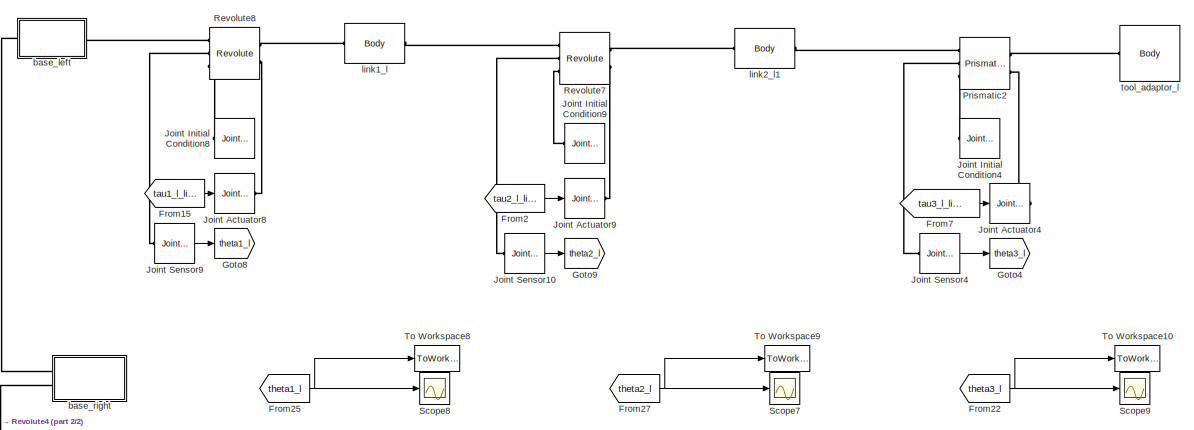
[diagram: Robot_Mechanics - part 1/2, full width, top band]
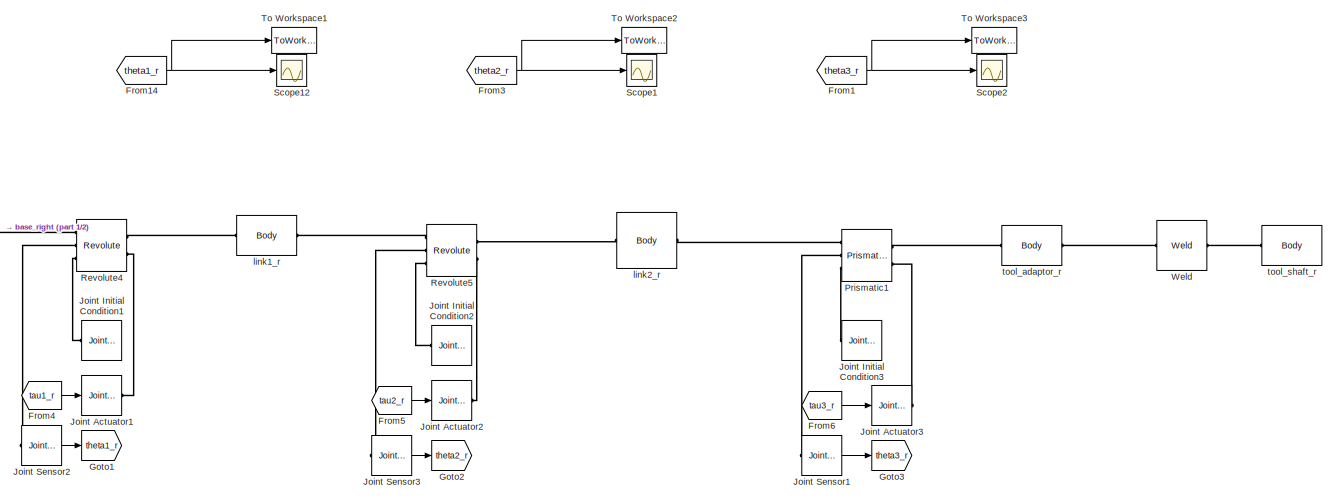
[diagram: Robot_Mechanics - part 2/2, full width, bottom band]
BLOCK [SubSystem] Robot_Mechanics
  Ports = []
  RequestExecContextInheritance = off
  Variant = off
BLOCK [From] Robot_Mechanics/From1
  GotoTag = theta3_r
  TagVisibility = global
BLOCK [From] Robot_Mechanics/From14
  GotoTag = theta1_r
  TagVisibility = global
BLOCK [From] Robot_Mechanics/From15
  GotoTag = tau1_l_link
  TagVisibility = global
BLOCK [From] Robot_Mechanics/From2
  GotoTag = tau2_l_link
  TagVisibility = global
BLOCK [From] Robot_Mechanics/From22
  GotoTag = theta3_l
  TagVisibility = global
BLOCK [From] Robot_Mechanics/From25
  GotoTag = theta1_l
  TagVisibility = global
BLOCK [From] Robot_Mechanics/From27
  GotoTag = theta2_l
  TagVisibility = global
BLOCK [From] Robot_Mechanics/From3
  GotoTag = theta2_r
  TagVisibility = global
BLOCK [From] Robot_Mechanics/From4
  GotoTag = tau1_r
  TagVisibility = global
BLOCK [From] Robot_Mechanics/From5
  GotoTag = tau2_r
  TagVisibility = global
BLOCK [From] Robot_Mechanics/From6
  GotoTag = tau3_r
  TagVisibility = global
BLOCK [From] Robot_Mechanics/From7
  GotoTag = tau3_l_link
  TagVisibility = global
BLOCK [Goto] Robot_Mechanics/Goto1
  GotoTag = theta1_r
  TagVisibility = global
BLOCK [Goto] Robot_Mechanics/Goto2
  GotoTag = theta2_r
  TagVisibility = global
BLOCK [Goto] Robot_Mechanics/Goto3
  GotoTag = theta3_r
  TagVisibility = global
BLOCK [Goto] Robot_Mechanics/Goto4
  GotoTag = theta3_l
  TagVisibility = global
BLOCK [Goto] Robot_Mechanics/Goto8
  GotoTag = theta1_l
  TagVisibility = global
BLOCK [Goto] Robot_Mechanics/Goto9
  GotoTag = theta2_l
  TagVisibility = global
BLOCK [Reference] Robot_Mechanics/Joint Actuator1  REF=mblibv1/Sensors & 
Actuators/Joint Actuator
  Ports = [1, 0, 0, 0, 0, 0, 1]
  SourceBlock = mblibv1/Sensors & \nActuators/Joint Actuator
  SourceType = Joint Actuator
BLOCK [Reference] Robot_Mechanics/Joint Actuator2  REF=mblibv1/Sensors & 
Actuators/Joint Actuator
  Ports = [1, 0, 0, 0, 0, 0, 1]
  SourceBlock = mblibv1/Sensors & \nActuators/Joint Actuator
  SourceType = Joint Actuator
BLOCK [Reference] Robot_Mechanics/Joint Actuator3  REF=mblibv1/Sensors & 
Actuators/Joint Actuator
  Ports = [1, 0, 0, 0, 0, 0, 1]
  SourceBlock = mblibv1/Sensors & \nActuators/Joint Actuator
  SourceType = Joint Actuator
BLOCK [Reference] Robot_Mechanics/Joint Actuator4  REF=mblibv1/Sensors & 
Actuators/Joint Actuator
  Ports = [1, 0, 0, 0, 0, 0, 1]
  SourceBlock = mblibv1/Sensors & \nActuators/Joint Actuator
  SourceType = Joint Actuator
BLOCK [Reference] Robot_Mechanics/Joint Actuator8  REF=mblibv1/Sensors & 
Actuators/Joint Actuator
  Ports = [1, 0, 0, 0, 0, 0, 1]
  SourceBlock = mblibv1/Sensors & \nActuators/Joint Actuator
  SourceType = Joint Actuator
BLOCK [Reference] Robot_Mechanics/Joint Actuator9  REF=mblibv1/Sensors & 
Actuators/Joint Actuator
  Ports = [1, 0, 0, 0, 0, 0, 1]
  SourceBlock = mblibv1/Sensors & \nActuators/Joint Actuator
  SourceType = Joint Actuator
BLOCK [Reference] Robot_Mechanics/Joint Initial Condition1  REF=mblibv1/Sensors & 
Actuators/Joint Initial Condition
  Ports = [0, 0, 0, 0, 0, 0, 1]
  SourceBlock = mblibv1/Sensors & \nActuators/Joint Initial Condition
  SourceType = Joint Initial Condition
BLOCK [Reference] Robot_Mechanics/Joint Initial Condition2  REF=mblibv1/Sensors & 
Actuators/Joint Initial Condition
  Ports = [0, 0, 0, 0, 0, 0, 1]
  SourceBlock = mblibv1/Sensors & \nActuators/Joint Initial Condition
  SourceType = Joint Initial Condition
BLOCK [Reference] Robot_Mechanics/Joint Initial Condition3  REF=mblibv1/Sensors & 
Actuators/Joint Initial Condition
  Ports = [0, 0, 0, 0, 0, 0, 1]
  SourceBlock = mblibv1/Sensors & \nActuators/Joint Initial Condition
  SourceType = Joint Initial Condition
BLOCK [Reference] Robot_Mechanics/Joint Initial Condition4  REF=mblibv1/Sensors & 
Actuators/Joint Initial Condition
  Ports = [0, 0, 0, 0, 0, 0, 1]
  SourceBlock = mblibv1/Sensors & \nActuators/Joint Initial Condition
  SourceType = Joint Initial Condition
BLOCK [Reference] Robot_Mechanics/Joint Initial Condition8  REF=mblibv1/Sensors & 
Actuators/Joint Initial Condition
  Ports = [0, 0, 0, 0, 0, 0, 1]
  SourceBlock = mblibv1/Sensors & \nActuators/Joint Initial Condition
  SourceType = Joint Initial Condition
BLOCK [Reference] Robot_Mechanics/Joint Initial Condition9  REF=mblibv1/Sensors & 
Actuators/Joint Initial Condition
  Ports = [0, 0, 0, 0, 0, 0, 1]
  SourceBlock = mblibv1/Sensors & \nActuators/Joint Initial Condition
  SourceType = Joint Initial Condition
BLOCK [Reference] Robot_Mechanics/Joint Sensor1  REF=mblibv1/Sensors & 
Actuators/Joint Sensor
  Ports = [0, 1, 0, 0, 0, 1]
  SourceBlock = mblibv1/Sensors & \nActuators/Joint Sensor
  SourceType = Joint Sensor
BLOCK [Reference] Robot_Mechanics/Joint Sensor10  REF=mblibv1/Sensors & 
Actuators/Joint Sensor
  Ports = [0, 1, 0, 0, 0, 1]
  SourceBlock = mblibv1/Sensors & \nActuators/Joint Sensor
  SourceType = Joint Sensor
BLOCK [Reference] Robot_Mechanics/Joint Sensor2  REF=mblibv1/Sensors & 
Actuators/Joint Sensor
  Ports = [0, 1, 0, 0, 0, 1]
  SourceBlock = mblibv1/Sensors & \nActuators/Joint Sensor
  SourceType = Joint Sensor
BLOCK [Reference] Robot_Mechanics/Joint Sensor3  REF=mblibv1/Sensors & 
Actuators/Joint Sensor
  Ports = [0, 1, 0, 0, 0, 1]
  SourceBlock = mblibv1/Sensors & \nActuators/Joint Sensor
  SourceType = Joint Sensor
BLOCK [Reference] Robot_Mechanics/Joint Sensor4  REF=mblibv1/Sensors & 
Actuators/Joint Sensor
  Ports = [0, 1, 0, 0, 0, 1]
  SourceBlock = mblibv1/Sensors & \nActuators/Joint Sensor
  SourceType = Joint Sensor
BLOCK [Reference] Robot_Mechanics/Joint Sensor9  REF=mblibv1/Sensors & 
Actuators/Joint Sensor
  Ports = [0, 1, 0, 0, 0, 1]
  SourceBlock = mblibv1/Sensors & \nActuators/Joint Sensor
  SourceType = Joint Sensor
BLOCK [Reference] Robot_Mechanics/Prismatic1  REF=mblibv1/Joints/Prismatic
  Ports = [0, 0, 0, 0, 0, 3, 2]
  SourceBlock = mblibv1/Joints/Prismatic
  SourceType = Prismatic
BLOCK [Reference] Robot_Mechanics/Prismatic2  REF=mblibv1/Joints/Prismatic
  Ports = [0, 0, 0, 0, 0, 3, 2]
  SourceBlock = mblibv1/Joints/Prismatic
  SourceType = Prismatic
BLOCK [Reference] Robot_Mechanics/Revolute4  REF=mblibv1/Joints/Revolute
  Ports = [0, 0, 0, 0, 0, 3, 2]
  SourceBlock = mblibv1/Joints/Revolute
  SourceType = Revolute
BLOCK [Reference] Robot_Mechanics/Revolute5  REF=mblibv1/Joints/Revolute
  Ports = [0, 0, 0, 0, 0, 3, 2]
  SourceBlock = mblibv1/Joints/Revolute
  SourceType = Revolute
BLOCK [Reference] Robot_Mechanics/Revolute7  REF=mblibv1/Joints/Revolute
  Ports = [0, 0, 0, 0, 0, 3, 2]
  SourceBlock = mblibv1/Joints/Revolute
  SourceType = Revolute
BLOCK [Reference] Robot_Mechanics/Revolute8  REF=mblibv1/Joints/Revolute
  Ports = [0, 0, 0, 0, 0, 3, 2]
  SourceBlock = mblibv1/Joints/Revolute
  SourceType = Revolute
BLOCK [Scope] Robot_Mechanics/Scope1
  Ports = [1]
  ScopeSpecificationString = Simulink.scopes.TimeScopeBlockCfg('CurrentConfiguration', extmgr.ConfigurationSet(extmgr.Configuration('Core','General UI',true,'FigureColor',[0.501960784313725 0.501960784313725 0.501960784313725]),extmgr.Configuration('Core','Source UI',true),extmgr.Configuration('Sources','WiredSimulink',true,'DataLoggingVariableName','ScopeData28','DataLoggingSaveFormat','Array','DataLoggingDecimation','1','Da...<+2580ch>
BLOCK [Scope] Robot_Mechanics/Scope12
  Ports = [1]
  ScopeSpecificationString = Simulink.scopes.TimeScopeBlockCfg('CurrentConfiguration', extmgr.ConfigurationSet(extmgr.Configuration('Core','General UI',true,'FigureColor',[0.501960784313725 0.501960784313725 0.501960784313725]),extmgr.Configuration('Core','Source UI',true),extmgr.Configuration('Sources','WiredSimulink',true,'DataLoggingVariableName','ScopeData32','DataLoggingSaveFormat','Array','DataLoggingDecimation','1','Da...<+2580ch>
BLOCK [Scope] Robot_Mechanics/Scope2
  Ports = [1]
  ScopeSpecificationString = Simulink.scopes.TimeScopeBlockCfg('CurrentConfiguration', extmgr.ConfigurationSet(extmgr.Configuration('Core','General UI',true,'FigureColor',[0.501960784313725 0.501960784313725 0.501960784313725]),extmgr.Configuration('Core','Source UI',true),extmgr.Configuration('Sources','WiredSimulink',true,'DataLoggingVariableName','ScopeData35','DataLoggingSaveFormat','Array','DataLoggingDecimation','1','Da...<+2580ch>
BLOCK [Scope] Robot_Mechanics/Scope7
  Ports = [1]
  ScopeSpecificationString = Simulink.scopes.TimeScopeBlockCfg('CurrentConfiguration', extmgr.ConfigurationSet(extmgr.Configuration('Core','General UI',true,'FigureColor',[0.501960784313725 0.501960784313725 0.501960784313725]),extmgr.Configuration('Core','Source UI',true),extmgr.Configuration('Sources','WiredSimulink',true,'DataLoggingVariableName','ScopeData40','DataLoggingSaveFormat','Array','DataLoggingDecimation','1','Da...<+2580ch>
BLOCK [Scope] Robot_Mechanics/Scope8
  Ports = [1]
  ScopeSpecificationString = Simulink.scopes.TimeScopeBlockCfg('CurrentConfiguration', extmgr.ConfigurationSet(extmgr.Configuration('Core','General UI',true,'FigureColor',[0.501960784313725 0.501960784313725 0.501960784313725]),extmgr.Configuration('Core','Source UI',true),extmgr.Configuration('Sources','WiredSimulink',true,'DataLoggingVariableName','ScopeData41','DataLoggingSaveFormat','Array','DataLoggingDecimation','1','Da...<+2580ch>
BLOCK [Scope] Robot_Mechanics/Scope9
  Ports = [1]
  ScopeSpecificationString = Simulink.scopes.TimeScopeBlockCfg('CurrentConfiguration', extmgr.ConfigurationSet(extmgr.Configuration('Core','General UI',true,'FigureColor',[0.501960784313725 0.501960784313725 0.501960784313725]),extmgr.Configuration('Core','Source UI',true),extmgr.Configuration('Sources','WiredSimulink',true,'DataLoggingVariableName','ScopeData42','DataLoggingSaveFormat','Array','DataLoggingDecimation','1','Da...<+2580ch>
BLOCK [ToWorkspace] Robot_Mechanics/To Workspace1
  FixptAsFi = on
  MaxDataPoints = inf
  Ports = [1]
  SampleTime = -1
  Save2DSignal = 3-D array (concatenate along third dimension)
  SaveFormat = Timeseries
  VariableName = r_theta1
BLOCK [ToWorkspace] Robot_Mechanics/To Workspace10
  FixptAsFi = on
  MaxDataPoints = inf
  Ports = [1]
  SampleTime = -1
  Save2DSignal = 3-D array (concatenate along third dimension)
  SaveFormat = Timeseries
  VariableName = l_theta3
BLOCK [ToWorkspace] Robot_Mechanics/To Workspace2
  FixptAsFi = on
  MaxDataPoints = inf
  Ports = [1]
  SampleTime = -1
  Save2DSignal = 3-D array (concatenate along third dimension)
  SaveFormat = Timeseries
  VariableName = r_theta2
BLOCK [ToWorkspace] Robot_Mechanics/To Workspace3
  FixptAsFi = on
  MaxDataPoints = inf
  Ports = [1]
  SampleTime = -1
  Save2DSignal = 3-D array (concatenate along third dimension)
  SaveFormat = Timeseries
  VariableName = r_theta3
BLOCK [ToWorkspace] Robot_Mechanics/To Workspace8
  FixptAsFi = on
  MaxDataPoints = inf
  Ports = [1]
  SampleTime = -1
  Save2DSignal = 3-D array (concatenate along third dimension)
  SaveFormat = Timeseries
  VariableName = l_theta1
BLOCK [ToWorkspace] Robot_Mechanics/To Workspace9
  FixptAsFi = on
  MaxDataPoints = inf
  Ports = [1]
  SampleTime = -1
  Save2DSignal = 3-D array (concatenate along third dimension)
  SaveFormat = Timeseries
  VariableName = l_theta2
BLOCK [Reference] Robot_Mechanics/Weld  REF=mblibv1/Joints/Weld
  Ports = [0, 0, 0, 0, 0, 1, 1]
  SourceBlock = mblibv1/Joints/Weld
  SourceType = Weld
BLOCK [SubSystem] Robot_Mechanics/base_left
  Ports = [0, 0, 0, 0, 0, 1, 1]
  RequestExecContextInheritance = off
  Variant = off
BLOCK [PMIOPort] Robot_Mechanics/base_left/Conn1
  Port = 1
  Side = Right
BLOCK [PMIOPort] Robot_Mechanics/base_left/Conn2
  Port = 2
  Side = Left
BLOCK [Reference] Robot_Mechanics/base_left/Weld1  REF=mblibv1/Joints/Weld
  Ports = [0, 0, 0, 0, 0, 1, 1]
  SourceBlock = mblibv1/Joints/Weld
  SourceType = Weld
BLOCK [Reference] Robot_Mechanics/base_left/base_l-1  REF=mblibv1/Bodies/Body
  Ports = [0, 0, 0, 0, 0, 1, 1]
  SourceBlock = mblibv1/Bodies/Body
  SourceType = Body
BLOCK [SubSystem] Robot_Mechanics/base_right
  Ports = [0, 0, 0, 0, 0, 2]
  RequestExecContextInheritance = off
  Variant = off
BLOCK [Reference] Robot_Mechanics/base_right/Machine Environment  REF=mblibv1/Bodies/Machine
Environment
  Ports = [0, 0, 0, 0, 0, 0, 1]
  SourceBlock = mblibv1/Bodies/Machine\nEnvironment
  SourceType = Machine Environment
BLOCK [Reference] Robot_Mechanics/base_right/RootGround  REF=mblibv1/Bodies/Ground
  Ports = [0, 0, 0, 0, 0, 1, 1]
  SourceBlock = mblibv1/Bodies/Ground
  SourceType = Ground
  UserDataPersistent = on
BLOCK [Reference] Robot_Mechanics/base_right/RootPart  REF=mblibv1/Bodies/Body
  Ports = [0, 0, 0, 0, 0, 1, 1]
  SourceBlock = mblibv1/Bodies/Body
  SourceType = Body
BLOCK [Reference] Robot_Mechanics/base_right/Weld  REF=mblibv1/Joints/Weld
  Ports = [0, 0, 0, 0, 0, 1, 1]
  SourceBlock = mblibv1/Joints/Weld
  SourceType = Weld
BLOCK [Reference] Robot_Mechanics/base_right/Weld2  REF=mblibv1/Joints/Weld
  Ports = [0, 0, 0, 0, 0, 1, 1]
  SourceBlock = mblibv1/Joints/Weld
  SourceType = Weld
BLOCK [Reference] Robot_Mechanics/base_right/base_r-1  REF=mblibv1/Bodies/Body
  Ports = [0, 0, 0, 0, 0, 2, 1]
  SourceBlock = mblibv1/Bodies/Body
  SourceType = Body
BLOCK [PMIOPort] Robot_Mechanics/base_right/left_arm
  Port = 1
  Side = Left
BLOCK [PMIOPort] Robot_Mechanics/base_right/right_arm
  Port = 2
  Side = Left
BLOCK [Reference] Robot_Mechanics/link1_l  REF=mblibv1/Bodies/Body
  Ports = [0, 0, 0, 0, 0, 1, 1]
  SourceBlock = mblibv1/Bodies/Body
  SourceType = Body
BLOCK [Reference] Robot_Mechanics/link1_r  REF=mblibv1/Bodies/Body
  Ports = [0, 0, 0, 0, 0, 1, 1]
  SourceBlock = mblibv1/Bodies/Body
  SourceType = Body
BLOCK [Reference] Robot_Mechanics/link2_l1  REF=mblibv1/Bodies/Body
  Ports = [0, 0, 0, 0, 0, 1, 1]
  SourceBlock = mblibv1/Bodies/Body
  SourceType = Body
BLOCK [Reference] Robot_Mechanics/link2_r  REF=mblibv1/Bodies/Body
  Ports = [0, 0, 0, 0, 0, 1, 1]
  SourceBlock = mblibv1/Bodies/Body
  SourceType = Body
BLOCK [Reference] Robot_Mechanics/tool_adaptor_l  REF=mblibv1/Bodies/Body
  Ports = [0, 0, 0, 0, 0, 0, 1]
  SourceBlock = mblibv1/Bodies/Body
  SourceType = Body
BLOCK [Reference] Robot_Mechanics/tool_adaptor_r  REF=mblibv1/Bodies/Body
  Ports = [0, 0, 0, 0, 0, 1, 1]
  SourceBlock = mblibv1/Bodies/Body
  SourceType = Body
BLOCK [Reference] Robot_Mechanics/tool_shaft_r  REF=mblibv1/Bodies/Body
  Ports = [0, 0, 0, 0, 0, 1]
  SourceBlock = mblibv1/Bodies/Body
  SourceType = Body
BLOCK [SubSystem] Scopes
  Ports = []
  RequestExecContextInheritance = off
  Variant = off
BLOCK [From] Scopes/From
  GotoTag = tau1_l
  TagVisibility = global
BLOCK [From] Scopes/From1
  GotoTag = tau2_l
  TagVisibility = global
BLOCK [From] Scopes/From14
  GotoTag = theta1_r
  TagVisibility = global
BLOCK [From] Scopes/From15
  GotoTag = theta2_l
  TagVisibility = global
BLOCK [From] Scopes/From16
  GotoTag = theta1_l
  TagVisibility = global
BLOCK [From] Scopes/From2
  GotoTag = theta3_l
  TagVisibility = global
BLOCK [From] Scopes/From22
  GotoTag = theta2_r
  TagVisibility = global
BLOCK [From] Scopes/From23
  GotoTag = theta3_r
  TagVisibility = global
BLOCK [From] Scopes/From7
  GotoTag = tau1_r
  TagVisibility = global
BLOCK [From] Scopes/From8
  GotoTag = tau2_r
  TagVisibility = global
BLOCK [From] Scopes/From9
  GotoTag = tau3_r
  TagVisibility = global
BLOCK [Scope] Scopes/Scope
  Ports = [1]
  ScopeSpecificationString = Simulink.scopes.TimeScopeBlockCfg('CurrentConfiguration', extmgr.ConfigurationSet(extmgr.Configuration('Core','General UI',true,'FigureColor',[0.501960784313725 0.501960784313725 0.501960784313725]),extmgr.Configuration('Core','Source UI',true),extmgr.Configuration('Sources','WiredSimulink',true,'DataLoggingSaveFormat','Array','DataLoggingDecimation','1','DataLoggingDecimateData',true),extmgr.Conf...<+2540ch>
BLOCK [Scope] Scopes/Scope1
  Ports = [1]
  ScopeSpecificationString = Simulink.scopes.TimeScopeBlockCfg('CurrentConfiguration', extmgr.ConfigurationSet(extmgr.Configuration('Core','General UI',true,'FigureColor',[0.501960784313725 0.501960784313725 0.501960784313725]),extmgr.Configuration('Core','Source UI',true),extmgr.Configuration('Sources','WiredSimulink',true,'DataLoggingVariableName','ScopeData1','DataLoggingSaveFormat','Array','DataLoggingDecimation','1','Dat...<+2579ch>
BLOCK [Scope] Scopes/Scope12
  Ports = [1]
  ScopeSpecificationString = Simulink.scopes.TimeScopeBlockCfg('CurrentConfiguration', extmgr.ConfigurationSet(extmgr.Configuration('Core','General UI',true,'FigureColor',[0.501960784313725 0.501960784313725 0.501960784313725]),extmgr.Configuration('Core','Source UI',true),extmgr.Configuration('Sources','WiredSimulink',true,'DataLoggingVariableName','ScopeData12','DataLoggingSaveFormat','Array','DataLoggingDecimation','1','Da...<+2580ch>
BLOCK [Scope] Scopes/Scope13
  Ports = [1]
  ScopeSpecificationString = Simulink.scopes.TimeScopeBlockCfg('CurrentConfiguration', extmgr.ConfigurationSet(extmgr.Configuration('Core','General UI',true,'FigureColor',[0.501960784313725 0.501960784313725 0.501960784313725]),extmgr.Configuration('Core','Source UI',true),extmgr.Configuration('Sources','WiredSimulink',true,'DataLoggingVariableName','ScopeData13','DataLoggingSaveFormat','Array','DataLoggingDecimation','1','Da...<+2580ch>
BLOCK [Scope] Scopes/Scope14
  Ports = [1]
  ScopeSpecificationString = Simulink.scopes.TimeScopeBlockCfg('CurrentConfiguration', extmgr.ConfigurationSet(extmgr.Configuration('Core','General UI',true,'FigureColor',[0.501960784313725 0.501960784313725 0.501960784313725]),extmgr.Configuration('Core','Source UI',true),extmgr.Configuration('Sources','WiredSimulink',true,'DataLoggingVariableName','ScopeData14','DataLoggingSaveFormat','Array','DataLoggingDecimation','1','Da...<+2580ch>
BLOCK [Scope] Scopes/Scope2
  Ports = [1]
  ScopeSpecificationString = Simulink.scopes.TimeScopeBlockCfg('CurrentConfiguration', extmgr.ConfigurationSet(extmgr.Configuration('Core','General UI',true,'FigureColor',[0.501960784313725 0.501960784313725 0.501960784313725]),extmgr.Configuration('Core','Source UI',true),extmgr.Configuration('Sources','WiredSimulink',true,'DataLoggingVariableName','ScopeData31','DataLoggingSaveFormat','Array','DataLoggingDecimation','1','Da...<+2580ch>
BLOCK [Scope] Scopes/Scope20
  Ports = [1]
  ScopeSpecificationString = Simulink.scopes.TimeScopeBlockCfg('CurrentConfiguration', extmgr.ConfigurationSet(extmgr.Configuration('Core','General UI',true,'FigureColor',[0.501960784313725 0.501960784313725 0.501960784313725]),extmgr.Configuration('Core','Source UI',true),extmgr.Configuration('Sources','WiredSimulink',true,'DataLoggingVariableName','ScopeData20','DataLoggingSaveFormat','Array','DataLoggingDecimation','1','Da...<+2579ch>
BLOCK [Scope] Scopes/Scope21
  Ports = [1]
  ScopeSpecificationString = Simulink.scopes.TimeScopeBlockCfg('CurrentConfiguration', extmgr.ConfigurationSet(extmgr.Configuration('Core','General UI',true,'FigureColor',[0.501960784313725 0.501960784313725 0.501960784313725]),extmgr.Configuration('Core','Source UI',true),extmgr.Configuration('Sources','WiredSimulink',true,'DataLoggingVariableName','ScopeData21','DataLoggingSaveFormat','Array','DataLoggingDecimation','1','Da...<+2580ch>
BLOCK [Scope] Scopes/Scope6
  Ports = [1]
  ScopeSpecificationString = Simulink.scopes.TimeScopeBlockCfg('CurrentConfiguration', extmgr.ConfigurationSet(extmgr.Configuration('Core','General UI',true,'FigureColor',[0.501960784313725 0.501960784313725 0.501960784313725]),extmgr.Configuration('Core','Source UI',true),extmgr.Configuration('Sources','WiredSimulink',true,'DataLoggingVariableName','ScopeData8','DataLoggingSaveFormat','Array','DataLoggingDecimation','1','Dat...<+2579ch>
BLOCK [Scope] Scopes/Scope7
  Ports = [1]
  ScopeSpecificationString = Simulink.scopes.TimeScopeBlockCfg('CurrentConfiguration', extmgr.ConfigurationSet(extmgr.Configuration('Core','General UI',true,'FigureColor',[0.501960784313725 0.501960784313725 0.501960784313725]),extmgr.Configuration('Core','Source UI',true),extmgr.Configuration('Sources','WiredSimulink',true,'DataLoggingVariableName','ScopeData9','DataLoggingSaveFormat','Array','DataLoggingDecimation','1','Dat...<+2579ch>
BLOCK [Scope] Scopes/Scope8
  Ports = [1]
  ScopeSpecificationString = Simulink.scopes.TimeScopeBlockCfg('CurrentConfiguration', extmgr.ConfigurationSet(extmgr.Configuration('Core','General UI',true,'FigureColor',[0.501960784313725 0.501960784313725 0.501960784313725]),extmgr.Configuration('Core','Source UI',true),extmgr.Configuration('Sources','WiredSimulink',true,'DataLoggingVariableName','ScopeData10','DataLoggingSaveFormat','Array','DataLoggingDecimation','1','Da...<+2580ch>
BLOCK [ToWorkspace] Scopes/To Workspace
  FixptAsFi = on
  MaxDataPoints = inf
  Ports = [1]
  SampleTime = -1
  Save2DSignal = 3-D array (concatenate along third dimension)
  SaveFormat = Timeseries
  VariableName = joint1_states
BLOCK [ToWorkspace] Scopes/To Workspace1
  FixptAsFi = on
  MaxDataPoints = inf
  Ports = [1]
  SampleTime = -1
  Save2DSignal = 3-D array (concatenate along third dimension)
  SaveFormat = Timeseries
  VariableName = joint2_states
BLOCK [ToWorkspace] Scopes/To Workspace2
  FixptAsFi = on
  MaxDataPoints = inf
  Ports = [1]
  SampleTime = -1
  Save2DSignal = 3-D array (concatenate along third dimension)
  SaveFormat = Timeseries
  VariableName = joint3_states
ANNOTATION (root): RAVEN II Surgical Robot Dynamic Modeling and Controls Xiao Li Created on June, 29, 2015 Last Updated on Nov, 4, 2015
LINE Joint_Control/right_arm_control_command_signal/Add1:1 -> Joint_Control/right_arm_control_command_signal/Goto1:1
LINE Joint_Control/right_arm_control_command_signal/Add2:1 -> Joint_Control/right_arm_control_command_signal/Goto3:1
LINE Joint_Control/right_arm_control_command_signal/Add:1 -> Joint_Control/right_arm_control_command_signal/Goto2:1
NET Joint_Control/right_arm_control_command_signal/Demux1:1 -> Joint_Control/right_arm_control_command_signal/Mux1:2, Joint_Control/right_arm_control_command_signal/Sum1:2
LINE Joint_Control/right_arm_control_command_signal/Demux1:2 -> Joint_Control/right_arm_control_command_signal/Gain2:1
NET Joint_Control/right_arm_control_command_signal/Demux2:1 -> Joint_Control/right_arm_control_command_signal/Mux2:2, Joint_Control/right_arm_control_command_signal/Sum2:2
LINE Joint_Control/right_arm_control_command_signal/Demux2:2 -> Joint_Control/right_arm_control_command_signal/Gain6:1
NET Joint_Control/right_arm_control_command_signal/Demux:1 -> Joint_Control/right_arm_control_command_signal/Mux:2, Joint_Control/right_arm_control_command_signal/Sum:2
LINE Joint_Control/right_arm_control_command_signal/Demux:2 -> Joint_Control/right_arm_control_command_signal/Gain1:1
LINE Joint_Control/right_arm_control_command_signal/From1:1 -> Joint_Control/right_arm_control_command_signal/Demux:1
LINE Joint_Control/right_arm_control_command_signal/From2:1 -> Joint_Control/right_arm_control_command_signal/Demux1:1
LINE Joint_Control/right_arm_control_command_signal/From3:1 -> Joint_Control/right_arm_control_command_signal/Demux2:1
LINE Joint_Control/right_arm_control_command_signal/Gain10:1 -> Joint_Control/right_arm_control_command_signal/Add1:1
LINE Joint_Control/right_arm_control_command_signal/Gain11:1 -> Joint_Control/right_arm_control_command_signal/Add2:2
LINE Joint_Control/right_arm_control_command_signal/Gain1:1 -> Joint_Control/right_arm_control_command_signal/Add:3
LINE Joint_Control/right_arm_control_command_signal/Gain2:1 -> Joint_Control/right_arm_control_command_signal/Add1:3
LINE Joint_Control/right_arm_control_command_signal/Gain3:1 -> Joint_Control/right_arm_control_command_signal/Add:2
LINE Joint_Control/right_arm_control_command_signal/Gain4:1 -> Joint_Control/right_arm_control_command_signal/Add1:2
LINE Joint_Control/right_arm_control_command_signal/Gain5:1 -> Joint_Control/right_arm_control_command_signal/Add2:1
LINE Joint_Control/right_arm_control_command_signal/Gain6:1 -> Joint_Control/right_arm_control_command_signal/Add2:3
LINE Joint_Control/right_arm_control_command_signal/Gain9:1 -> Joint_Control/right_arm_control_command_signal/Add:1
LINE Joint_Control/right_arm_control_command_signal/Integrator1:1 -> Joint_Control/right_arm_control_command_signal/Gain10:1
LINE Joint_Control/right_arm_control_command_signal/Integrator2:1 -> Joint_Control/right_arm_control_command_signal/Gain5:1
LINE Joint_Control/right_arm_control_command_signal/Integrator:1 -> Joint_Control/right_arm_control_command_signal/Gain9:1
LINE Joint_Control/right_arm_control_command_signal/Mux1:1 -> Joint_Control/right_arm_control_command_signal/Scope2:1
LINE Joint_Control/right_arm_control_command_signal/Mux2:1 -> Joint_Control/right_arm_control_command_signal/Scope3:1
LINE Joint_Control/right_arm_control_command_signal/Mux:1 -> Joint_Control/right_arm_control_command_signal/Scope1:1
NET Joint_Control/right_arm_control_command_signal/Step1:1 -> Joint_Control/right_arm_control_command_signal/Mux:1, Joint_Control/right_arm_control_command_signal/Sum:1
NET Joint_Control/right_arm_control_command_signal/Step2:1 -> Joint_Control/right_arm_control_command_signal/Mux1:1, Joint_Control/right_arm_control_command_signal/Sum1:1
NET Joint_Control/right_arm_control_command_signal/Step5:1 -> Joint_Control/right_arm_control_command_signal/Mux2:1, Joint_Control/right_arm_control_command_signal/Sum2:1
NET Joint_Control/right_arm_control_command_signal/Sum1:1 -> Joint_Control/right_arm_control_command_signal/Gain4:1, Joint_Control/right_arm_control_command_signal/Integrator1:1
NET Joint_Control/right_arm_control_command_signal/Sum2:1 -> Joint_Control/right_arm_control_command_signal/Gain11:1, Joint_Control/right_arm_control_command_signal/Integrator2:1
NET Joint_Control/right_arm_control_command_signal/Sum:1 -> Joint_Control/right_arm_control_command_signal/Gain3:1, Joint_Control/right_arm_control_command_signal/Integrator:1
LINE Joint_Limits_PD_Control/joint_r1_limit/Add1:1 -> Joint_Limits_PD_Control/joint_r1_limit/Goto1:1
LINE Joint_Limits_PD_Control/joint_r1_limit/Compare To Zero2:1 -> Joint_Limits_PD_Control/joint_r1_limit/Product2:2
LINE Joint_Limits_PD_Control/joint_r1_limit/Compare To Zero3:1 -> Joint_Limits_PD_Control/joint_r1_limit/Product3:1
NET Joint_Limits_PD_Control/joint_r1_limit/Demux1:1 -> Joint_Limits_PD_Control/joint_r1_limit/Fcn1:1, Joint_Limits_PD_Control/joint_r1_limit/Fcn3:1
LINE Joint_Limits_PD_Control/joint_r1_limit/Demux1:2 -> Joint_Limits_PD_Control/joint_r1_limit/Gain2:1
NET Joint_Limits_PD_Control/joint_r1_limit/Fcn1:1 -> Joint_Limits_PD_Control/joint_r1_limit/Compare To Zero3:1, Joint_Limits_PD_Control/joint_r1_limit/Product3:2
NET Joint_Limits_PD_Control/joint_r1_limit/Fcn3:1 -> Joint_Limits_PD_Control/joint_r1_limit/Compare To Zero2:1, Joint_Limits_PD_Control/joint_r1_limit/Product2:1
LINE Joint_Limits_PD_Control/joint_r1_limit/From1:1 -> Joint_Limits_PD_Control/joint_r1_limit/Demux1:1
LINE Joint_Limits_PD_Control/joint_r1_limit/Gain1:1 -> Joint_Limits_PD_Control/joint_r1_limit/Add1:2
LINE Joint_Limits_PD_Control/joint_r1_limit/Gain2:1 -> Joint_Limits_PD_Control/joint_r1_limit/Add1:3
LINE Joint_Limits_PD_Control/joint_r1_limit/Gain3:1 -> Joint_Limits_PD_Control/joint_r1_limit/Add1:1
LINE Joint_Limits_PD_Control/joint_r1_limit/Product2:1 -> Joint_Limits_PD_Control/joint_r1_limit/Gain3:1
LINE Joint_Limits_PD_Control/joint_r1_limit/Product3:1 -> Joint_Limits_PD_Control/joint_r1_limit/Gain1:1
LINE Joint_Limits_PD_Control/joint_r2_limit/Add1:1 -> Joint_Limits_PD_Control/joint_r2_limit/Goto1:1
LINE Joint_Limits_PD_Control/joint_r2_limit/Compare To Zero2:1 -> Joint_Limits_PD_Control/joint_r2_limit/Product2:2
LINE Joint_Limits_PD_Control/joint_r2_limit/Compare To Zero3:1 -> Joint_Limits_PD_Control/joint_r2_limit/Product3:1
NET Joint_Limits_PD_Control/joint_r2_limit/Demux1:1 -> Joint_Limits_PD_Control/joint_r2_limit/Fcn1:1, Joint_Limits_PD_Control/joint_r2_limit/Fcn3:1
LINE Joint_Limits_PD_Control/joint_r2_limit/Demux1:2 -> Joint_Limits_PD_Control/joint_r2_limit/Gain2:1
NET Joint_Limits_PD_Control/joint_r2_limit/Fcn1:1 -> Joint_Limits_PD_Control/joint_r2_limit/Compare To Zero3:1, Joint_Limits_PD_Control/joint_r2_limit/Product3:2
NET Joint_Limits_PD_Control/joint_r2_limit/Fcn3:1 -> Joint_Limits_PD_Control/joint_r2_limit/Compare To Zero2:1, Joint_Limits_PD_Control/joint_r2_limit/Product2:1
LINE Joint_Limits_PD_Control/joint_r2_limit/From1:1 -> Joint_Limits_PD_Control/joint_r2_limit/Demux1:1
LINE Joint_Limits_PD_Control/joint_r2_limit/Gain1:1 -> Joint_Limits_PD_Control/joint_r2_limit/Add1:2
LINE Joint_Limits_PD_Control/joint_r2_limit/Gain2:1 -> Joint_Limits_PD_Control/joint_r2_limit/Add1:3
LINE Joint_Limits_PD_Control/joint_r2_limit/Gain3:1 -> Joint_Limits_PD_Control/joint_r2_limit/Add1:1
LINE Joint_Limits_PD_Control/joint_r2_limit/Product2:1 -> Joint_Limits_PD_Control/joint_r2_limit/Gain3:1
LINE Joint_Limits_PD_Control/joint_r2_limit/Product3:1 -> Joint_Limits_PD_Control/joint_r2_limit/Gain1:1
LINE Joint_Limits_PD_Control/joint_r3_limit/Add1:1 -> Joint_Limits_PD_Control/joint_r3_limit/Goto2:1
LINE Joint_Limits_PD_Control/joint_r3_limit/Compare To Zero2:1 -> Joint_Limits_PD_Control/joint_r3_limit/Product2:2
LINE Joint_Limits_PD_Control/joint_r3_limit/Compare To Zero3:1 -> Joint_Limits_PD_Control/joint_r3_limit/Product3:1
NET Joint_Limits_PD_Control/joint_r3_limit/Demux1:1 -> Joint_Limits_PD_Control/joint_r3_limit/Fcn1:1, Joint_Limits_PD_Control/joint_r3_limit/Fcn3:1
LINE Joint_Limits_PD_Control/joint_r3_limit/Demux1:2 -> Joint_Limits_PD_Control/joint_r3_limit/Gain2:1
NET Joint_Limits_PD_Control/joint_r3_limit/Fcn1:1 -> Joint_Limits_PD_Control/joint_r3_limit/Compare To Zero3:1, Joint_Limits_PD_Control/joint_r3_limit/Product3:2
NET Joint_Limits_PD_Control/joint_r3_limit/Fcn3:1 -> Joint_Limits_PD_Control/joint_r3_limit/Compare To Zero2:1, Joint_Limits_PD_Control/joint_r3_limit/Product2:1
LINE Joint_Limits_PD_Control/joint_r3_limit/From1:1 -> Joint_Limits_PD_Control/joint_r3_limit/Demux1:1
LINE Joint_Limits_PD_Control/joint_r3_limit/Gain1:1 -> Joint_Limits_PD_Control/joint_r3_limit/Add1:2
LINE Joint_Limits_PD_Control/joint_r3_limit/Gain2:1 -> Joint_Limits_PD_Control/joint_r3_limit/Add1:3
LINE Joint_Limits_PD_Control/joint_r3_limit/Gain3:1 -> Joint_Limits_PD_Control/joint_r3_limit/Add1:1
LINE Joint_Limits_PD_Control/joint_r3_limit/Product2:1 -> Joint_Limits_PD_Control/joint_r3_limit/Gain3:1
LINE Joint_Limits_PD_Control/joint_r3_limit/Product3:1 -> Joint_Limits_PD_Control/joint_r3_limit/Gain1:1
LINE Joint_Torques_And_Forces/Add10:1 -> Joint_Torques_And_Forces/Goto2:1
LINE Joint_Torques_And_Forces/Add11:1 -> Joint_Torques_And_Forces/Goto3:1
NET Joint_Torques_And_Forces/Add1:1 -> Joint_Torques_And_Forces/Goto4:1, Joint_Torques_And_Forces/Scope5:1
NET Joint_Torques_And_Forces/Add2:1 -> Joint_Torques_And_Forces/Goto5:1, Joint_Torques_And_Forces/Scope8:1
NET Joint_Torques_And_Forces/Add4:1 -> Joint_Torques_And_Forces/Goto8:1, Joint_Torques_And_Forces/Scope4:1
LINE Joint_Torques_And_Forces/Add9:1 -> Joint_Torques_And_Forces/Goto1:1
LINE Joint_Torques_And_Forces/From1:1 -> Joint_Torques_And_Forces/Add9:1
LINE Joint_Torques_And_Forces/From24:1 -> Joint_Torques_And_Forces/Add9:2
LINE Joint_Torques_And_Forces/From25:1 -> Joint_Torques_And_Forces/Add10:2
LINE Joint_Torques_And_Forces/From26:1 -> Joint_Torques_And_Forces/Add11:2
LINE Joint_Torques_And_Forces/From2:1 -> Joint_Torques_And_Forces/Add10:1
LINE Joint_Torques_And_Forces/From3:1 -> Joint_Torques_And_Forces/Add11:1
LINE Joint_Torques_And_Forces/From4:1 -> Joint_Torques_And_Forces/Selector:1
LINE Joint_Torques_And_Forces/From5:1 -> Joint_Torques_And_Forces/Selector1:1
NET Joint_Torques_And_Forces/From6:1 -> Joint_Torques_And_Forces/Add1:1, Joint_Torques_And_Forces/Scope2:1
LINE Joint_Torques_And_Forces/From7:1 -> Joint_Torques_And_Forces/Selector2:1
NET Joint_Torques_And_Forces/From8:1 -> Joint_Torques_And_Forces/Add4:1, Joint_Torques_And_Forces/Scope1:1
NET Joint_Torques_And_Forces/From9:1 -> Joint_Torques_And_Forces/Add2:1, Joint_Torques_And_Forces/Scope6:1
NET Joint_Torques_And_Forces/Gain1:1 -> Joint_Torques_And_Forces/Scope9:1, Joint_Torques_And_Forces/Sum:1
LINE Joint_Torques_And_Forces/Gain2:1 -> Joint_Torques_And_Forces/Sum1:2
LINE Joint_Torques_And_Forces/Gain3:1 -> Joint_Torques_And_Forces/Sum1:1
LINE Joint_Torques_And_Forces/Gain4:1 -> Joint_Torques_And_Forces/Sum2:2
LINE Joint_Torques_And_Forces/Gain5:1 -> Joint_Torques_And_Forces/Sum2:1
NET Joint_Torques_And_Forces/Gain:1 -> Joint_Torques_And_Forces/Scope10:1, Joint_Torques_And_Forces/Sum:2
NET Joint_Torques_And_Forces/Selector1:1 -> Joint_Torques_And_Forces/Gain2:1, Joint_Torques_And_Forces/Sign1:1
NET Joint_Torques_And_Forces/Selector2:1 -> Joint_Torques_And_Forces/Gain4:1, Joint_Torques_And_Forces/Sign2:1
NET Joint_Torques_And_Forces/Selector:1 -> Joint_Torques_And_Forces/Gain:1, Joint_Torques_And_Forces/Sign:1
LINE Joint_Torques_And_Forces/Sign1:1 -> Joint_Torques_And_Forces/Gain3:1
LINE Joint_Torques_And_Forces/Sign2:1 -> Joint_Torques_And_Forces/Gain5:1
LINE Joint_Torques_And_Forces/Sign:1 -> Joint_Torques_And_Forces/Gain1:1
NET Joint_Torques_And_Forces/Sum1:1 -> Joint_Torques_And_Forces/Add1:2, Joint_Torques_And_Forces/Scope3:1
NET Joint_Torques_And_Forces/Sum2:1 -> Joint_Torques_And_Forces/Add2:2, Joint_Torques_And_Forces/Scope7:1
NET Joint_Torques_And_Forces/Sum:1 -> Joint_Torques_And_Forces/Add4:2, Joint_Torques_And_Forces/Scope11:1
LINE Motors/Motor1/Add1:1 -> Motors/Motor1/Scope3:1
LINE Motors/Motor1/Add:1 -> Motors/Motor1/Gain2:1
NET Motors/Motor1/Demux:1 -> Motors/Motor1/Mux:3, Motors/Motor1/Scope9:1
LINE Motors/Motor1/Demux:2 -> Motors/Motor1/Mux:4
LINE Motors/Motor1/Fcn1:1 -> Motors/Motor1/Scope12:1
LINE Motors/Motor1/Fcn2:1 -> Motors/Motor1/Scope13:1
NET Motors/Motor1/Fcn:1 -> Motors/Motor1/Gain3:1, Motors/Motor1/Gain7:1, Motors/Motor1/Scope5:1
NET Motors/Motor1/From Workspace:1 -> Motors/Motor1/Add1:1, Motors/Motor1/Add:2, Motors/Motor1/Scope11:1
LINE Motors/Motor1/From1:1 -> Motors/Motor1/Demux:1
NET Motors/Motor1/Gain1:1 -> Motors/Motor1/Add:4, Motors/Motor1/Scope4:1
NET Motors/Motor1/Gain2:1 -> Motors/Motor1/Integrator:1, Motors/Motor1/Scope7:1
NET Motors/Motor1/Gain3:1 -> Motors/Motor1/Add1:2, Motors/Motor1/Add:3, Motors/Motor1/Scope8:1
LINE Motors/Motor1/Gain4:1 -> Motors/Motor1/Mux:1
LINE Motors/Motor1/Gain5:1 -> Motors/Motor1/Mux:2
NET Motors/Motor1/Gain7:1 -> Motors/Motor1/Goto2:1, Motors/Motor1/Scope10:1
NET Motors/Motor1/Gain:1 -> Motors/Motor1/Add:1, Motors/Motor1/Scope6:1
NET Motors/Motor1/Integrator2:1 -> Motors/Motor1/Gain5:1, Motors/Motor1/Scope2:1, Motors/Motor1/To Workspace:1
NET Motors/Motor1/Integrator:1 -> Motors/Motor1/Gain4:1, Motors/Motor1/Gain:1, Motors/Motor1/Integrator2:1, Motors/Motor1/Scope1:1, Motors/Motor1/Sign:1, Motors/Motor1/To Workspace1:1
NET Motors/Motor1/Mux:1 -> Motors/Motor1/Fcn1:1, Motors/Motor1/Fcn2:1, Motors/Motor1/Fcn:1
LINE Motors/Motor1/Sign:1 -> Motors/Motor1/Gain1:1
LINE Motors/Motor2/Add:1 -> Motors/Motor2/Gain2:1
NET Motors/Motor2/Demux:1 -> Motors/Motor2/Mux:3, Motors/Motor2/Scope9:1
LINE Motors/Motor2/Demux:2 -> Motors/Motor2/Mux:4
NET Motors/Motor2/Fcn:1 -> Motors/Motor2/Gain3:1, Motors/Motor2/Gain7:1, Motors/Motor2/Scope5:1
NET Motors/Motor2/From Workspace:1 -> Motors/Motor2/Add:2, Motors/Motor2/Scope11:1
LINE Motors/Motor2/From1:1 -> Motors/Motor2/Demux:1
NET Motors/Motor2/Gain1:1 -> Motors/Motor2/Add:4, Motors/Motor2/Scope4:1
NET Motors/Motor2/Gain2:1 -> Motors/Motor2/Integrator:1, Motors/Motor2/Scope7:1
NET Motors/Motor2/Gain3:1 -> Motors/Motor2/Add:3, Motors/Motor2/Scope8:1
LINE Motors/Motor2/Gain4:1 -> Motors/Motor2/Mux:1
LINE Motors/Motor2/Gain5:1 -> Motors/Motor2/Mux:2
NET Motors/Motor2/Gain7:1 -> Motors/Motor2/Goto2:1, Motors/Motor2/Scope10:1
NET Motors/Motor2/Gain:1 -> Motors/Motor2/Add:1, Motors/Motor2/Scope6:1
NET Motors/Motor2/Integrator2:1 -> Motors/Motor2/Gain5:1, Motors/Motor2/Scope2:1, Motors/Motor2/To Workspace:1
NET Motors/Motor2/Integrator:1 -> Motors/Motor2/Gain4:1, Motors/Motor2/Gain:1, Motors/Motor2/Integrator2:1, Motors/Motor2/Scope1:1, Motors/Motor2/Sign:1, Motors/Motor2/To Workspace1:1
LINE Motors/Motor2/Mux:1 -> Motors/Motor2/Fcn:1
LINE Motors/Motor2/Sign:1 -> Motors/Motor2/Gain1:1
LINE Motors/Motor3/Add:1 -> Motors/Motor3/Gain2:1
NET Motors/Motor3/Demux:1 -> Motors/Motor3/Mux:3, Motors/Motor3/Scope9:1
LINE Motors/Motor3/Demux:2 -> Motors/Motor3/Mux:4
NET Motors/Motor3/Fcn:1 -> Motors/Motor3/Gain3:1, Motors/Motor3/Gain7:1, Motors/Motor3/Scope5:1
NET Motors/Motor3/From Workspace:1 -> Motors/Motor3/Add:2, Motors/Motor3/Scope11:1
LINE Motors/Motor3/From1:1 -> Motors/Motor3/Demux:1
NET Motors/Motor3/Gain1:1 -> Motors/Motor3/Add:4, Motors/Motor3/Scope4:1
NET Motors/Motor3/Gain2:1 -> Motors/Motor3/Integrator:1, Motors/Motor3/Scope7:1
NET Motors/Motor3/Gain3:1 -> Motors/Motor3/Add:3, Motors/Motor3/Scope8:1
LINE Motors/Motor3/Gain4:1 -> Motors/Motor3/Mux:1
LINE Motors/Motor3/Gain5:1 -> Motors/Motor3/Mux:2
NET Motors/Motor3/Gain7:1 -> Motors/Motor3/Goto2:1, Motors/Motor3/Scope10:1
NET Motors/Motor3/Gain:1 -> Motors/Motor3/Add:1, Motors/Motor3/Scope6:1
NET Motors/Motor3/Integrator2:1 -> Motors/Motor3/Gain5:1, Motors/Motor3/Scope2:1, Motors/Motor3/To Workspace:1
NET Motors/Motor3/Integrator:1 -> Motors/Motor3/Gain4:1, Motors/Motor3/Gain:1, Motors/Motor3/Integrator2:1, Motors/Motor3/Scope1:1, Motors/Motor3/Sign:1, Motors/Motor3/To Workspace1:1
LINE Motors/Motor3/Mux:1 -> Motors/Motor3/Fcn:1
LINE Motors/Motor3/Sign:1 -> Motors/Motor3/Gain1:1
NET Robot_Mechanics/From14:1 -> Robot_Mechanics/Scope12:1, Robot_Mechanics/To Workspace1:1
LINE Robot_Mechanics/From15:1 -> Robot_Mechanics/Joint Actuator8:1
NET Robot_Mechanics/From1:1 -> Robot_Mechanics/Scope2:1, Robot_Mechanics/To Workspace3:1
NET Robot_Mechanics/From22:1 -> Robot_Mechanics/Scope9:1, Robot_Mechanics/To Workspace10:1
NET Robot_Mechanics/From25:1 -> Robot_Mechanics/Scope8:1, Robot_Mechanics/To Workspace8:1
NET Robot_Mechanics/From27:1 -> Robot_Mechanics/Scope7:1, Robot_Mechanics/To Workspace9:1
LINE Robot_Mechanics/From2:1 -> Robot_Mechanics/Joint Actuator9:1
NET Robot_Mechanics/From3:1 -> Robot_Mechanics/Scope1:1, Robot_Mechanics/To Workspace2:1
LINE Robot_Mechanics/From4:1 -> Robot_Mechanics/Joint Actuator1:1
LINE Robot_Mechanics/From5:1 -> Robot_Mechanics/Joint Actuator2:1
LINE Robot_Mechanics/From6:1 -> Robot_Mechanics/Joint Actuator3:1
LINE Robot_Mechanics/From7:1 -> Robot_Mechanics/Joint Actuator4:1
LINE Robot_Mechanics/Joint Sensor10:1 -> Robot_Mechanics/Goto9:1
LINE Robot_Mechanics/Joint Sensor1:1 -> Robot_Mechanics/Goto3:1
LINE Robot_Mechanics/Joint Sensor2:1 -> Robot_Mechanics/Goto1:1
LINE Robot_Mechanics/Joint Sensor3:1 -> Robot_Mechanics/Goto2:1
LINE Robot_Mechanics/Joint Sensor4:1 -> Robot_Mechanics/Goto4:1
LINE Robot_Mechanics/Joint Sensor9:1 -> Robot_Mechanics/Goto8:1
LINE Scopes/From14:1 -> Scopes/Scope12:1
NET Scopes/From15:1 -> Scopes/Scope14:1, Scopes/To Workspace1:1
NET Scopes/From16:1 -> Scopes/Scope13:1, Scopes/To Workspace:1
LINE Scopes/From1:1 -> Scopes/Scope:1
LINE Scopes/From22:1 -> Scopes/Scope20:1
LINE Scopes/From23:1 -> Scopes/Scope21:1
NET Scopes/From2:1 -> Scopes/Scope2:1, Scopes/To Workspace2:1
LINE Scopes/From7:1 -> Scopes/Scope7:1
LINE Scopes/From8:1 -> Scopes/Scope6:1
LINE Scopes/From9:1 -> Scopes/Scope8:1
LINE Scopes/From:1 -> Scopes/Scope1:1
PLINE Robot_Mechanics/Joint Actuator1:RConn1 -- Robot_Mechanics/Revolute4:RConn2
PLINE Robot_Mechanics/Joint Actuator2:RConn1 -- Robot_Mechanics/Revolute5:RConn2
PLINE Robot_Mechanics/Joint Actuator3:RConn1 -- Robot_Mechanics/Prismatic1:RConn2
PLINE Robot_Mechanics/Joint Actuator4:RConn1 -- Robot_Mechanics/Prismatic2:RConn2
PLINE Robot_Mechanics/Joint Actuator8:RConn1 -- Robot_Mechanics/Revolute8:RConn2
PLINE Robot_Mechanics/Joint Actuator9:RConn1 -- Robot_Mechanics/Revolute7:RConn2
PLINE Robot_Mechanics/Joint Initial Condition1:RConn1 -- Robot_Mechanics/Revolute4:LConn3
PLINE Robot_Mechanics/Joint Initial Condition2:RConn1 -- Robot_Mechanics/Revolute5:LConn3
PLINE Robot_Mechanics/Joint Initial Condition3:RConn1 -- Robot_Mechanics/Prismatic1:LConn3
PLINE Robot_Mechanics/Joint Initial Condition4:RConn1 -- Robot_Mechanics/Prismatic2:LConn3
PLINE Robot_Mechanics/Joint Initial Condition8:RConn1 -- Robot_Mechanics/Revolute8:LConn3
PLINE Robot_Mechanics/Joint Initial Condition9:RConn1 -- Robot_Mechanics/Revolute7:LConn3
PLINE Robot_Mechanics/Joint Sensor10:LConn1 -- Robot_Mechanics/Revolute7:LConn2
PLINE Robot_Mechanics/Joint Sensor1:LConn1 -- Robot_Mechanics/Prismatic1:LConn2
PLINE Robot_Mechanics/Joint Sensor2:LConn1 -- Robot_Mechanics/Revolute4:LConn2
PLINE Robot_Mechanics/Joint Sensor3:LConn1 -- Robot_Mechanics/Revolute5:LConn2
PLINE Robot_Mechanics/Joint Sensor4:LConn1 -- Robot_Mechanics/Prismatic2:LConn2
PLINE Robot_Mechanics/Joint Sensor9:LConn1 -- Robot_Mechanics/Revolute8:LConn2
PLINE Robot_Mechanics/Prismatic1:LConn1 -- Robot_Mechanics/link2_r:RConn1
PLINE Robot_Mechanics/Prismatic1:RConn1 -- Robot_Mechanics/tool_adaptor_r:LConn1
PLINE Robot_Mechanics/Prismatic2:LConn1 -- Robot_Mechanics/link2_l1:RConn1
PLINE Robot_Mechanics/Prismatic2:RConn1 -- Robot_Mechanics/tool_adaptor_l:RConn1
PLINE Robot_Mechanics/Revolute4:LConn1 -- Robot_Mechanics/base_right:LConn2
PLINE Robot_Mechanics/Revolute4:RConn1 -- Robot_Mechanics/link1_r:LConn1
PLINE Robot_Mechanics/Revolute5:LConn1 -- Robot_Mechanics/link1_r:RConn1
PLINE Robot_Mechanics/Revolute5:RConn1 -- Robot_Mechanics/link2_r:LConn1
PLINE Robot_Mechanics/Revolute7:LConn1 -- Robot_Mechanics/link1_l:RConn1
PLINE Robot_Mechanics/Revolute7:RConn1 -- Robot_Mechanics/link2_l1:LConn1
PLINE Robot_Mechanics/Revolute8:LConn1 -- Robot_Mechanics/base_left:RConn1
PLINE Robot_Mechanics/Revolute8:RConn1 -- Robot_Mechanics/link1_l:LConn1
PLINE Robot_Mechanics/Weld:LConn1 -- Robot_Mechanics/tool_adaptor_r:RConn1
PLINE Robot_Mechanics/Weld:RConn1 -- Robot_Mechanics/tool_shaft_r:LConn1
PLINE Robot_Mechanics/base_left/Conn1:RConn1 -- Robot_Mechanics/base_left/base_l-1:RConn1
PLINE Robot_Mechanics/base_left/Conn2:RConn1 -- Robot_Mechanics/base_left/Weld1:LConn1
PLINE Robot_Mechanics/base_left/Weld1:RConn1 -- Robot_Mechanics/base_left/base_l-1:LConn1
PLINE Robot_Mechanics/base_left:LConn1 -- Robot_Mechanics/base_right:LConn1
PLINE Robot_Mechanics/base_right/Machine Environment:RConn1 -- Robot_Mechanics/base_right/RootGround:LConn1
PLINE Robot_Mechanics/base_right/RootGround:RConn1 -- Robot_Mechanics/base_right/Weld2:LConn1
PLINE Robot_Mechanics/base_right/RootPart:LConn1 -- Robot_Mechanics/base_right/Weld2:RConn1
PLINE Robot_Mechanics/base_right/RootPart:RConn1 -- Robot_Mechanics/base_right/Weld:LConn1
PLINE Robot_Mechanics/base_right/Weld:RConn1 -- Robot_Mechanics/base_right/base_r-1:LConn1
PLINE Robot_Mechanics/base_right/base_r-1:LConn2 -- Robot_Mechanics/base_right/right_arm:RConn1
PLINE Robot_Mechanics/base_right/base_r-1:RConn1 -- Robot_Mechanics/base_right/left_arm:RConn1
note: NET lines group one-source signal fan-out (src -> all destinations, sorted); 1:1 wires keep LINE
